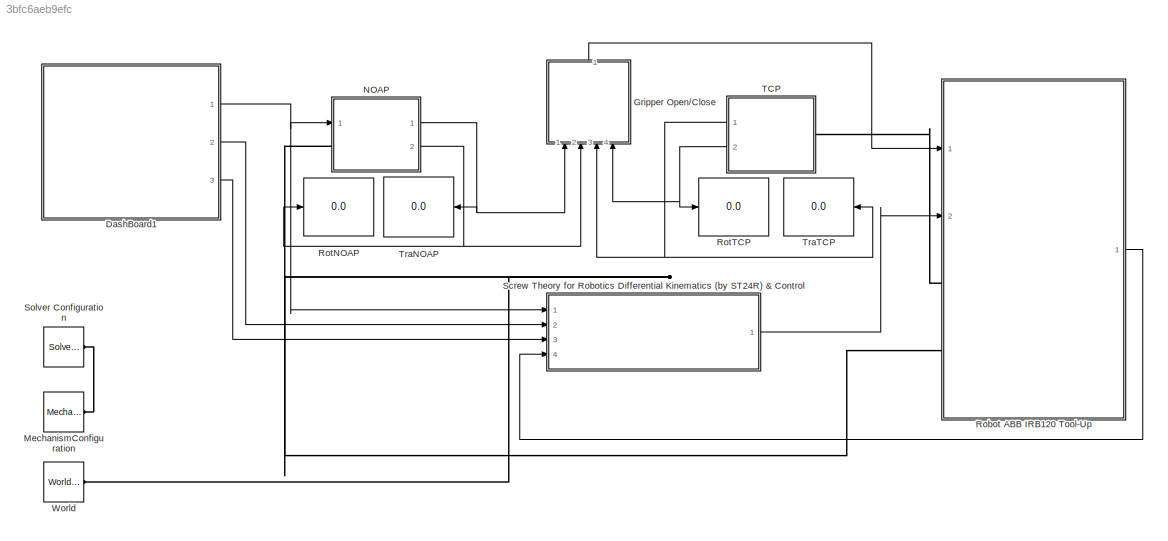
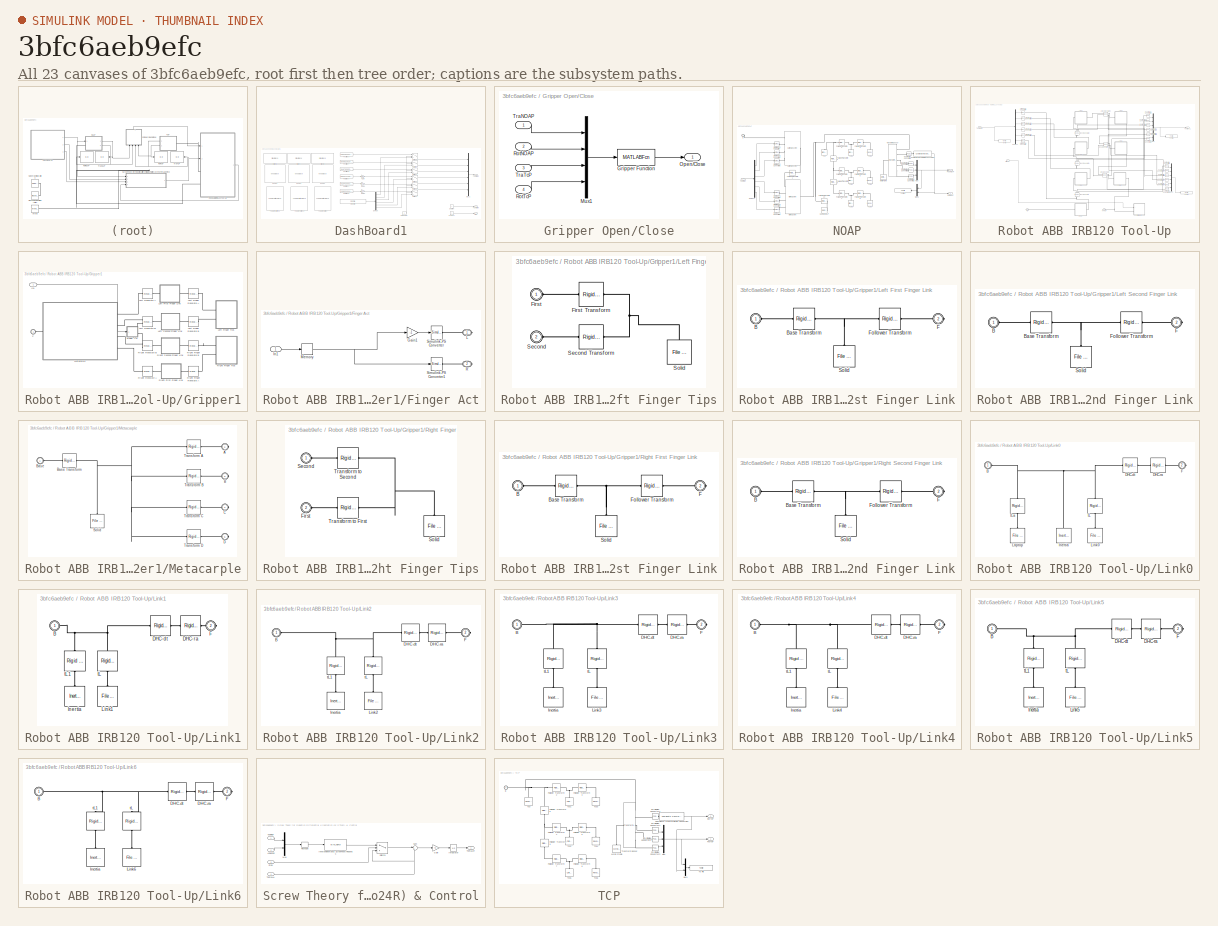
[diagram: thumbnail index - all 23 canvases of the model, root first then tree order]
MODEL slx_3bfc6aeb9efc
KIND model
CONFIG AbsTol = auto
CONFIG EnableMultiTasking = on
CONFIG FixedStep = 0.0005
CONFIG MaxStep = auto
CONFIG MinStep = auto
CONFIG RelTol = 1e-3
CONFIG SampleTimeConstraint = Unconstrained
CONFIG SolverName = FixedStepAuto
CONFIG StartTime = 0.0
CONFIG StopTime = 10
BLOCK [SubSystem] DashBoard1
  Ports = [0, 3]
  RequestExecContextInheritance = off
BLOCK [Outport] DashBoard1/#Solution
  NameLocation = top
  Port = 2
  VectorParamsAs1DForOutWhenUnconnected = off
BLOCK [Constant] DashBoard1/CONTROL
  Value = -1
BLOCK [Demux] DashBoard1/Demux
  Outputs = 6
  Ports = [1, 6]
BLOCK [FromFile] DashBoard1/From File
  ExtrapolationAfterLastDataPoint = Hold last value
  FileName = T852a_ST24R_DK_ABBIRB120_Trig
BLOCK [Gain] DashBoard1/Gain
  Gain = pi/180
BLOCK [Gain] DashBoard1/Gain1
  Gain = pi/180
BLOCK [Gain] DashBoard1/Gain2
  Gain = pi/180
BLOCK [KnobBlock] DashBoard1/Knob1
  ScaleMax = 360
  ScaleMin = -360
  TickInterval = 90
BLOCK [KnobBlock] DashBoard1/Knob2
  ScaleMax = 360
  ScaleMin = -360
  TickInterval = 90
BLOCK [KnobBlock] DashBoard1/Knob3
  ScaleMax = 360
  ScaleMin = -360
  TickInterval = 90
BLOCK [Mux] DashBoard1/Mux1
  DisplayOption = bar
  Inputs = 6
  Ports = [6, 1]
BLOCK [Constant] DashBoard1/Position X
  Value = 0.3823529411764706
BLOCK [Constant] DashBoard1/Position Y
  Value = 0.5088235294117647
BLOCK [Constant] DashBoard1/Position Z
  Value = -0.1879595588235294
BLOCK [Constant] DashBoard1/Rotation X
  Value = 5.860073780616631
BLOCK [Constant] DashBoard1/Rotation Y
  Value = 83.26420931237868
BLOCK [Constant] DashBoard1/Rotation Z
  Value = 136.8324914494164
BLOCK [Constant] DashBoard1/SAFETY
BLOCK [SliderBlock] DashBoard1/Slider
  ScaleMax = 0.75
  ScaleMin = 0.25
  TickInterval = 0.25
BLOCK [SliderBlock] DashBoard1/Slider1
  ScaleMax = 0.75
  ScaleMin = 0.25
  TickInterval = 0.25
BLOCK [SliderBlock] DashBoard1/Slider2
  ScaleMax = 0.5
  ScaleMin = -0.5
  TickInterval = 0.25
BLOCK [Constant] DashBoard1/Solution
BLOCK [Outport] DashBoard1/Stop
  Port = 3
  VectorParamsAs1DForOutWhenUnconnected = off
BLOCK [Switch] DashBoard1/Switch
  Criteria = u2 > Threshold
  InputSameDT = off
  SaturateOnIntegerOverflow = off
  ZeroCross = off
BLOCK [Switch] DashBoard1/Switch1
  Criteria = u2 > Threshold
  InputSameDT = off
  SaturateOnIntegerOverflow = off
  ZeroCross = off
BLOCK [Switch] DashBoard1/Switch2
  Criteria = u2 > Threshold
  InputSameDT = off
  SaturateOnIntegerOverflow = off
  ZeroCross = off
BLOCK [Switch] DashBoard1/Switch3
  Criteria = u2 > Threshold
  InputSameDT = off
  SaturateOnIntegerOverflow = off
  ZeroCross = off
BLOCK [Switch] DashBoard1/Switch4
  Criteria = u2 > Threshold
  InputSameDT = off
  SaturateOnIntegerOverflow = off
  ZeroCross = off
BLOCK [Switch] DashBoard1/Switch6
  Criteria = u2 > Threshold
  InputSameDT = off
  SaturateOnIntegerOverflow = off
  ZeroCross = off
BLOCK [ToggleSwitchBlock] DashBoard1/Toggle Switch
  LabelPosition = Bottom
  NameLocation = top
BLOCK [ToggleSwitchBlock] DashBoard1/Toggle Switch1
  LabelPosition = Bottom
  NameLocation = top
BLOCK [ToggleSwitchBlock] DashBoard1/Toggle Switch2
  LabelPosition = Bottom
  NameLocation = top
BLOCK [Outport] DashBoard1/ToolREF
  VectorParamsAs1DForOutWhenUnconnected = off
BLOCK [SubSystem] Gripper Open//Close
  NameLocation = left
  Ports = [4, 1]
  RequestExecContextInheritance = off
  ShowPortLabels = none
BLOCK [MATLABFcn] Gripper Open//Close/Gripper Function
  MATLABFcn = F200_Gripper
  OutputDimensions = 1
  Ports = [1, 1]
BLOCK [Mux] Gripper Open//Close/Mux1
  DisplayOption = bar
  Ports = [4, 1]
BLOCK [Outport] Gripper Open//Close/Open//Close
  VectorParamsAs1DForOutWhenUnconnected = off
BLOCK [Inport] Gripper Open//Close/RotNOAP
  Port = 2
BLOCK [Inport] Gripper Open//Close/RotTcP
  Port = 4
BLOCK [Inport] Gripper Open//Close/TraNOAP
BLOCK [Inport] Gripper Open//Close/TraTcP
  Port = 3
BLOCK [Reference] MechanismConfiguration  REF=sm_lib/Utilities/Mechanism
Configuration
  Ports = [0, 0, 0, 0, 0, 0, 1]
  SourceBlock = sm_lib/Utilities/Mechanism\nConfiguration
  SourceProductBaseCode = MS
  SourceType = Mechanism\nConfiguration
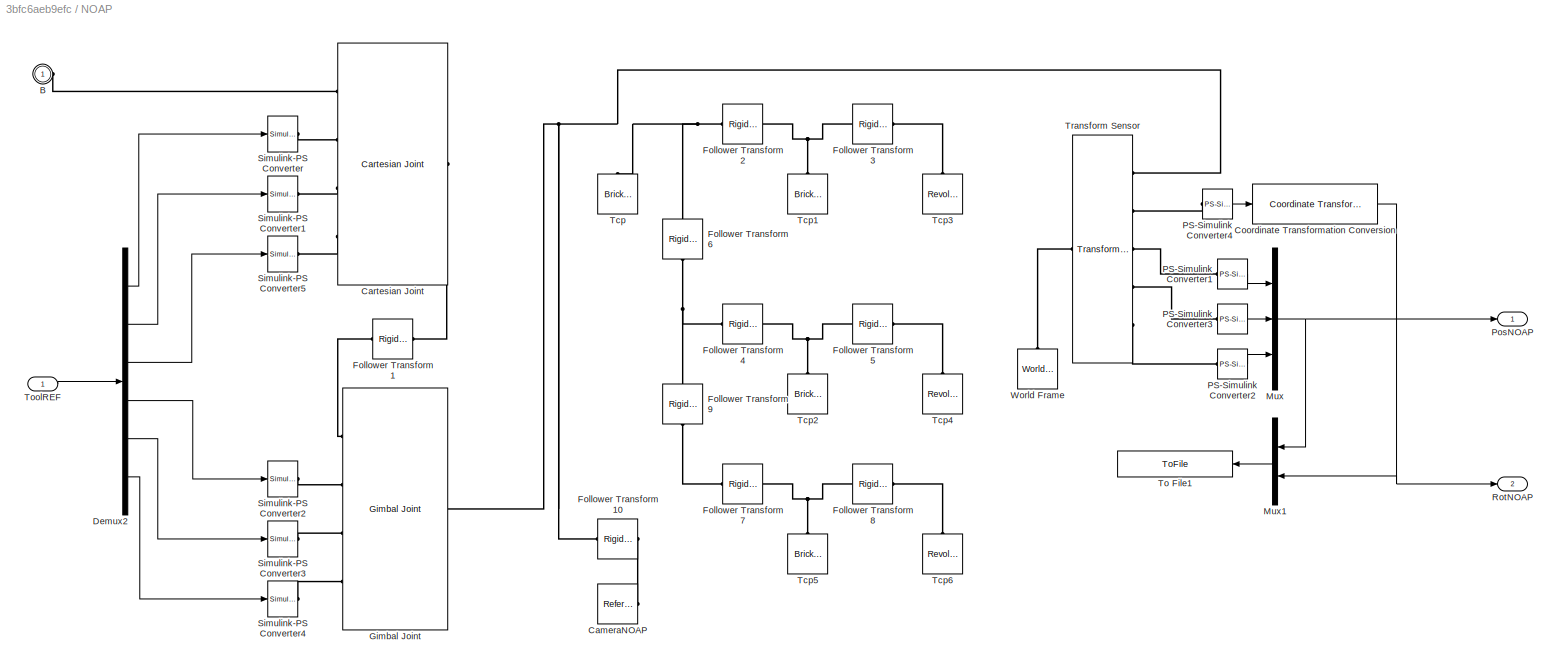
BLOCK [SubSystem] NOAP
  NameLocation = top
  Ports = [1, 2, 0, 0, 0, 1]
  RequestExecContextInheritance = off
BLOCK [PMIOPort] NOAP/B
  NameLocation = top
  Side = Left
BLOCK [Reference] NOAP/CameraNOAP   REF=sm_lib/Frames and
Transforms/Reference
Frame
  Ports = [0, 0, 0, 0, 0, 0, 1]
  SourceBlock = sm_lib/Frames and\nTransforms/Reference\nFrame
  SourceProductBaseCode = MS
  SourceType = Reference\nFrame
BLOCK [Reference] NOAP/Cartesian Joint  REF=sm_lib/Joints/Cartesian
Joint
  Ports = [0, 0, 0, 0, 0, 4, 1]
  SourceBlock = sm_lib/Joints/Cartesian\nJoint
  SourceProductBaseCode = MS
  SourceType = Cartesian\nJoint
BLOCK [Reference] NOAP/Coordinate Transformation Conversion  REF=robotcorelib/Coordinate Transformation Conversion
  Ports = [1, 1]
  SourceBlock = robotcorelib/Coordinate Transformation Conversion
  SourceProductBaseCode = NV,RO,RR,UV
  SourceType = robotics.slcore.internal.block.CoordinateTransformationConversion
BLOCK [Demux] NOAP/Demux2
  NameLocation = right
  Outputs = 6
  Ports = [1, 6]
BLOCK [Reference] NOAP/Follower Transform1  REF=sm_lib/Frames and
Transforms/Rigid
Transform
  NameLocation = top
  Ports = [0, 0, 0, 0, 0, 1, 1]
  SourceBlock = sm_lib/Frames and\nTransforms/Rigid\nTransform
  SourceProductBaseCode = MS
  SourceType = Rigid\nTransform
BLOCK [Reference] NOAP/Follower Transform10  REF=sm_lib/Frames and
Transforms/Rigid
Transform
  NameLocation = top
  Ports = [0, 0, 0, 0, 0, 1, 1]
  SourceBlock = sm_lib/Frames and\nTransforms/Rigid\nTransform
  SourceProductBaseCode = MS
  SourceType = Rigid\nTransform
BLOCK [Reference] NOAP/Follower Transform2  REF=sm_lib/Frames and
Transforms/Rigid
Transform
  NameLocation = top
  Ports = [0, 0, 0, 0, 0, 1, 1]
  SourceBlock = sm_lib/Frames and\nTransforms/Rigid\nTransform
  SourceProductBaseCode = MS
  SourceType = Rigid\nTransform
BLOCK [Reference] NOAP/Follower Transform3  REF=sm_lib/Frames and
Transforms/Rigid
Transform
  NameLocation = top
  Ports = [0, 0, 0, 0, 0, 1, 1]
  SourceBlock = sm_lib/Frames and\nTransforms/Rigid\nTransform
  SourceProductBaseCode = MS
  SourceType = Rigid\nTransform
BLOCK [Reference] NOAP/Follower Transform4  REF=sm_lib/Frames and
Transforms/Rigid
Transform
  NameLocation = top
  Ports = [0, 0, 0, 0, 0, 1, 1]
  SourceBlock = sm_lib/Frames and\nTransforms/Rigid\nTransform
  SourceProductBaseCode = MS
  SourceType = Rigid\nTransform
BLOCK [Reference] NOAP/Follower Transform5  REF=sm_lib/Frames and
Transforms/Rigid
Transform
  NameLocation = top
  Ports = [0, 0, 0, 0, 0, 1, 1]
  SourceBlock = sm_lib/Frames and\nTransforms/Rigid\nTransform
  SourceProductBaseCode = MS
  SourceType = Rigid\nTransform
BLOCK [Reference] NOAP/Follower Transform6  REF=sm_lib/Frames and
Transforms/Rigid
Transform
  NameLocation = right
  Ports = [0, 0, 0, 0, 0, 1, 1]
  SourceBlock = sm_lib/Frames and\nTransforms/Rigid\nTransform
  SourceProductBaseCode = MS
  SourceType = Rigid\nTransform
BLOCK [Reference] NOAP/Follower Transform7  REF=sm_lib/Frames and
Transforms/Rigid
Transform
  NameLocation = top
  Ports = [0, 0, 0, 0, 0, 1, 1]
  SourceBlock = sm_lib/Frames and\nTransforms/Rigid\nTransform
  SourceProductBaseCode = MS
  SourceType = Rigid\nTransform
BLOCK [Reference] NOAP/Follower Transform8  REF=sm_lib/Frames and
Transforms/Rigid
Transform
  NameLocation = top
  Ports = [0, 0, 0, 0, 0, 1, 1]
  SourceBlock = sm_lib/Frames and\nTransforms/Rigid\nTransform
  SourceProductBaseCode = MS
  SourceType = Rigid\nTransform
BLOCK [Reference] NOAP/Follower Transform9  REF=sm_lib/Frames and
Transforms/Rigid
Transform
  NameLocation = right
  Ports = [0, 0, 0, 0, 0, 1, 1]
  SourceBlock = sm_lib/Frames and\nTransforms/Rigid\nTransform
  SourceProductBaseCode = MS
  SourceType = Rigid\nTransform
BLOCK [Reference] NOAP/Gimbal Joint  REF=sm_lib/Joints/Gimbal Joint
  Ports = [0, 0, 0, 0, 0, 4, 1]
  SourceBlock = sm_lib/Joints/Gimbal Joint
  SourceProductBaseCode = MS
  SourceType = Gimbal Joint
BLOCK [Mux] NOAP/Mux
  DisplayOption = bar
  Inputs = 3
  Ports = [3, 1]
BLOCK [Mux] NOAP/Mux1
  DisplayOption = bar
  Inputs = 2
  Ports = [2, 1]
BLOCK [Reference] NOAP/PS-Simulink Converter1  REF=nesl_utility/PS-Simulink
Converter
  Ports = [0, 1, 0, 0, 0, 1]
  SourceBlock = nesl_utility/PS-Simulink\nConverter
  SourceProductBaseCode = SS
  SourceType = PS-Simulink\nConverter
BLOCK [Reference] NOAP/PS-Simulink Converter2  REF=nesl_utility/PS-Simulink
Converter
  Ports = [0, 1, 0, 0, 0, 1]
  SourceBlock = nesl_utility/PS-Simulink\nConverter
  SourceProductBaseCode = SS
  SourceType = PS-Simulink\nConverter
BLOCK [Reference] NOAP/PS-Simulink Converter3  REF=nesl_utility/PS-Simulink
Converter
  Ports = [0, 1, 0, 0, 0, 1]
  SourceBlock = nesl_utility/PS-Simulink\nConverter
  SourceProductBaseCode = SS
  SourceType = PS-Simulink\nConverter
BLOCK [Reference] NOAP/PS-Simulink Converter4  REF=nesl_utility/PS-Simulink
Converter
  Ports = [0, 1, 0, 0, 0, 1]
  SourceBlock = nesl_utility/PS-Simulink\nConverter
  SourceProductBaseCode = SS
  SourceType = PS-Simulink\nConverter
BLOCK [Outport] NOAP/PosNOAP
  VectorParamsAs1DForOutWhenUnconnected = off
BLOCK [Outport] NOAP/RotNOAP
  Port = 2
  VectorParamsAs1DForOutWhenUnconnected = off
BLOCK [Reference] NOAP/Simulink-PS Converter  REF=nesl_utility/Simulink-PS
Converter
  NameLocation = top
  Ports = [1, 0, 0, 0, 0, 0, 1]
  SourceBlock = nesl_utility/Simulink-PS\nConverter
  SourceProductBaseCode = SS
  SourceType = Simulink-PS\nConverter
BLOCK [Reference] NOAP/Simulink-PS Converter1  REF=nesl_utility/Simulink-PS
Converter
  NameLocation = top
  Ports = [1, 0, 0, 0, 0, 0, 1]
  SourceBlock = nesl_utility/Simulink-PS\nConverter
  SourceProductBaseCode = SS
  SourceType = Simulink-PS\nConverter
BLOCK [Reference] NOAP/Simulink-PS Converter2  REF=nesl_utility/Simulink-PS
Converter
  NameLocation = top
  Ports = [1, 0, 0, 0, 0, 0, 1]
  SourceBlock = nesl_utility/Simulink-PS\nConverter
  SourceProductBaseCode = SS
  SourceType = Simulink-PS\nConverter
BLOCK [Reference] NOAP/Simulink-PS Converter3  REF=nesl_utility/Simulink-PS
Converter
  NameLocation = top
  Ports = [1, 0, 0, 0, 0, 0, 1]
  SourceBlock = nesl_utility/Simulink-PS\nConverter
  SourceProductBaseCode = SS
  SourceType = Simulink-PS\nConverter
BLOCK [Reference] NOAP/Simulink-PS Converter4  REF=nesl_utility/Simulink-PS
Converter
  NameLocation = top
  Ports = [1, 0, 0, 0, 0, 0, 1]
  SourceBlock = nesl_utility/Simulink-PS\nConverter
  SourceProductBaseCode = SS
  SourceType = Simulink-PS\nConverter
BLOCK [Reference] NOAP/Simulink-PS Converter5  REF=nesl_utility/Simulink-PS
Converter
  NameLocation = top
  Ports = [1, 0, 0, 0, 0, 0, 1]
  SourceBlock = nesl_utility/Simulink-PS\nConverter
  SourceProductBaseCode = SS
  SourceType = Simulink-PS\nConverter
BLOCK [Reference] NOAP/Tcp  REF=sm_lib/Body Elements/Brick Solid
  NameLocation = right
  Ports = [0, 0, 0, 0, 0, 0, 1]
  SourceBlock = sm_lib/Body Elements/Brick Solid
  SourceProductBaseCode = MS
  SourceType = Brick Solid
BLOCK [Reference] NOAP/Tcp1  REF=sm_lib/Body Elements/Brick Solid
  NameLocation = right
  Ports = [0, 0, 0, 0, 0, 0, 1]
  SourceBlock = sm_lib/Body Elements/Brick Solid
  SourceProductBaseCode = MS
  SourceType = Brick Solid
BLOCK [Reference] NOAP/Tcp2  REF=sm_lib/Body Elements/Brick Solid
  NameLocation = right
  Ports = [0, 0, 0, 0, 0, 0, 1]
  SourceBlock = sm_lib/Body Elements/Brick Solid
  SourceProductBaseCode = MS
  SourceType = Brick Solid
BLOCK [Reference] NOAP/Tcp3  REF=sm_lib/Body Elements/Revolved Solid
  NameLocation = right
  Ports = [0, 0, 0, 0, 0, 0, 1]
  SourceBlock = sm_lib/Body Elements/Revolved Solid
  SourceProductBaseCode = MS
  SourceType = Revolved Solid
BLOCK [Reference] NOAP/Tcp4  REF=sm_lib/Body Elements/Revolved Solid
  NameLocation = right
  Ports = [0, 0, 0, 0, 0, 0, 1]
  SourceBlock = sm_lib/Body Elements/Revolved Solid
  SourceProductBaseCode = MS
  SourceType = Revolved Solid
BLOCK [Reference] NOAP/Tcp5  REF=sm_lib/Body Elements/Brick Solid
  NameLocation = right
  Ports = [0, 0, 0, 0, 0, 0, 1]
  SourceBlock = sm_lib/Body Elements/Brick Solid
  SourceProductBaseCode = MS
  SourceType = Brick Solid
BLOCK [Reference] NOAP/Tcp6  REF=sm_lib/Body Elements/Revolved Solid
  NameLocation = right
  Ports = [0, 0, 0, 0, 0, 0, 1]
  SourceBlock = sm_lib/Body Elements/Revolved Solid
  SourceProductBaseCode = MS
  SourceType = Revolved Solid
BLOCK [ToFile] NOAP/To File1
  Filename = ToolREF.mat
  Ports = [1]
BLOCK [Inport] NOAP/ToolREF
BLOCK [Reference] NOAP/Transform Sensor  REF=sm_lib/Frames and
Transforms/Transform
Sensor
  Ports = [0, 0, 0, 0, 0, 1, 5]
  SourceBlock = sm_lib/Frames and\nTransforms/Transform\nSensor
  SourceProductBaseCode = MS
  SourceType = Transform\nSensor
BLOCK [Reference] NOAP/World Frame  REF=sm_lib/Frames and
Transforms/World Frame
  NameLocation = right
  Ports = [0, 0, 0, 0, 0, 0, 1]
  SourceBlock = sm_lib/Frames and\nTransforms/World Frame
  SourceProductBaseCode = MS
  SourceType = World Frame
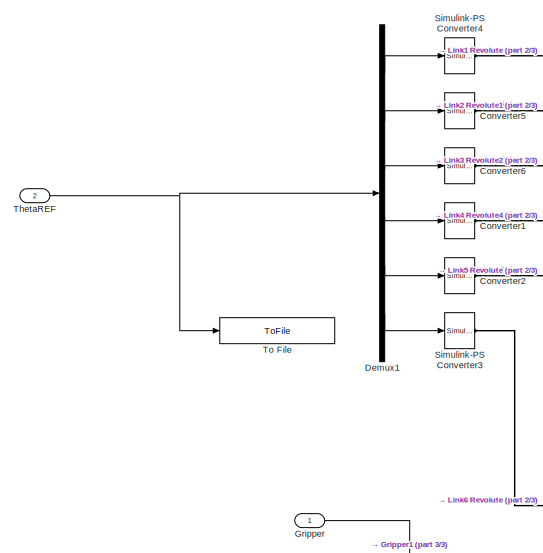
[diagram: Robot ABB IRB120 Tool-Up - part 1/3, top left region]
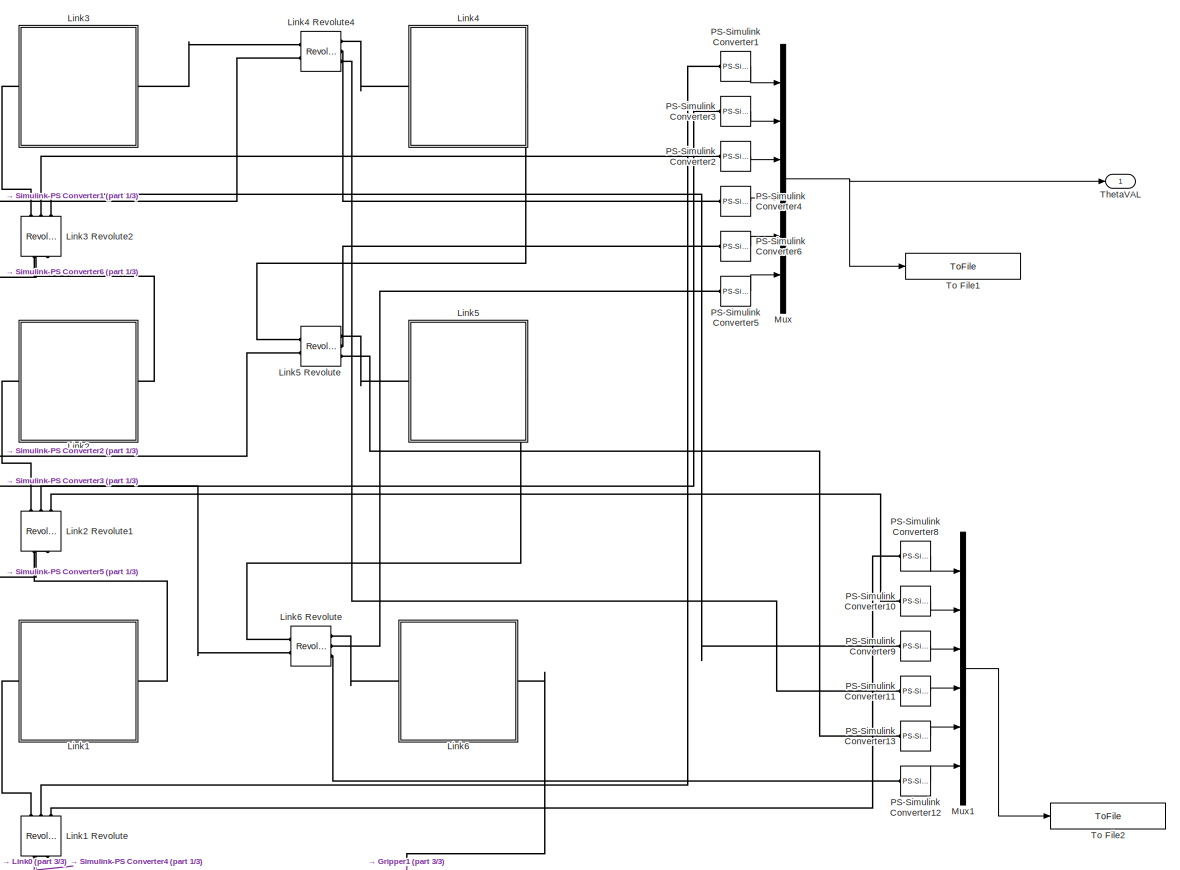
[diagram: Robot ABB IRB120 Tool-Up - part 2/3, right side, full height]
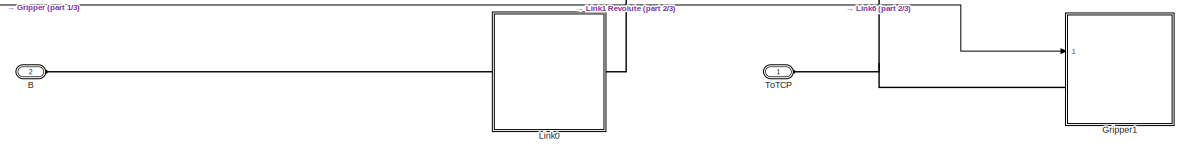
[diagram: Robot ABB IRB120 Tool-Up - part 3/3, bottom center region]
BLOCK [SubSystem] Robot ABB IRB120 Tool-Up
  NameLocation = top
  Ports = [2, 1, 0, 0, 0, 2]
  RequestExecContextInheritance = off
BLOCK [PMIOPort] Robot ABB IRB120 Tool-Up/B
  Port = 2
  Side = Left
BLOCK [Demux] Robot ABB IRB120 Tool-Up/Demux1
  Outputs = 6
  Ports = [1, 6]
BLOCK [Inport] Robot ABB IRB120 Tool-Up/Gripper
BLOCK [SubSystem] Robot ABB IRB120 Tool-Up/Gripper1
  NameLocation = top
  Ports = [1, 0, 0, 0, 0, 1]
  RequestExecContextInheritance = off
BLOCK [PMIOPort] Robot ABB IRB120 Tool-Up/Gripper1/F
  Side = Left
BLOCK [SubSystem] Robot ABB IRB120 Tool-Up/Gripper1/Finger Act
  NameLocation = top
  Ports = [1, 0, 0, 0, 0, 0, 2]
  RequestExecContextInheritance = off
BLOCK [Gain] Robot ABB IRB120 Tool-Up/Gripper1/Finger Act/Gain1
  Gain = -1
BLOCK [Inport] Robot ABB IRB120 Tool-Up/Gripper1/Finger Act/In1
BLOCK [PMIOPort] Robot ABB IRB120 Tool-Up/Gripper1/Finger Act/L
  Side = Right
BLOCK [Memory] Robot ABB IRB120 Tool-Up/Gripper1/Finger Act/Memory
  InitialCondition = 100
BLOCK [PMIOPort] Robot ABB IRB120 Tool-Up/Gripper1/Finger Act/R
  Port = 2
  Side = Right
BLOCK [Reference] Robot ABB IRB120 Tool-Up/Gripper1/Finger Act/Simulink-PS Converter  REF=nesl_utility/Simulink-PS
Converter
  Ports = [1, 0, 0, 0, 0, 0, 1]
  SourceBlock = nesl_utility/Simulink-PS\nConverter
  SourceProductBaseCode = SS
  SourceType = Simulink-PS\nConverter
BLOCK [Reference] Robot ABB IRB120 Tool-Up/Gripper1/Finger Act/Simulink-PS Converter1  REF=nesl_utility/Simulink-PS
Converter
  Ports = [1, 0, 0, 0, 0, 0, 1]
  SourceBlock = nesl_utility/Simulink-PS\nConverter
  SourceProductBaseCode = SS
  SourceType = Simulink-PS\nConverter
BLOCK [Inport] Robot ABB IRB120 Tool-Up/Gripper1/In1
BLOCK [Reference] Robot ABB IRB120 Tool-Up/Gripper1/Left Finger Revolute  A  REF=sm_lib/Joints/Revolute Joint
  NameLocation = top
  Ports = [0, 0, 0, 0, 0, 1, 1]
  SourceBlock = sm_lib/Joints/Revolute Joint
  SourceProductBaseCode = MS
  SourceType = Revolute Joint
BLOCK [Reference] Robot ABB IRB120 Tool-Up/Gripper1/Left Finger Revolute B  REF=sm_lib/Joints/Revolute Joint
  NameLocation = top
  Ports = [0, 0, 0, 0, 0, 1, 1]
  SourceBlock = sm_lib/Joints/Revolute Joint
  SourceProductBaseCode = MS
  SourceType = Revolute Joint
BLOCK [SubSystem] Robot ABB IRB120 Tool-Up/Gripper1/Left Finger Tips
  NameLocation = top
  Ports = [0, 0, 0, 0, 0, 2]
  RequestExecContextInheritance = off
BLOCK [PMIOPort] Robot ABB IRB120 Tool-Up/Gripper1/Left Finger Tips/First
  NameLocation = top
  Side = Left
BLOCK [Reference] Robot ABB IRB120 Tool-Up/Gripper1/Left Finger Tips/First Transform  REF=sm_lib/Frames and
Transforms/Rigid
Transform
  NameLocation = top
  Ports = [0, 0, 0, 0, 0, 1, 1]
  SourceBlock = sm_lib/Frames and\nTransforms/Rigid\nTransform
  SourceProductBaseCode = MS
  SourceType = Rigid\nTransform
BLOCK [PMIOPort] Robot ABB IRB120 Tool-Up/Gripper1/Left Finger Tips/Second
  NameLocation = top
  Port = 2
  Side = Left
BLOCK [Reference] Robot ABB IRB120 Tool-Up/Gripper1/Left Finger Tips/Second Transform  REF=sm_lib/Frames and
Transforms/Rigid
Transform
  Ports = [0, 0, 0, 0, 0, 1, 1]
  SourceBlock = sm_lib/Frames and\nTransforms/Rigid\nTransform
  SourceProductBaseCode = MS
  SourceType = Rigid\nTransform
BLOCK [Reference] Robot ABB IRB120 Tool-Up/Gripper1/Left Finger Tips/Solid  REF=sm_lib/Body Elements/File Solid
  NameLocation = right
  Ports = [0, 0, 0, 0, 0, 0, 1]
  SourceBlock = sm_lib/Body Elements/File Solid
  SourceProductBaseCode = MS
  SourceType = File Solid
BLOCK [SubSystem] Robot ABB IRB120 Tool-Up/Gripper1/Left First Finger Link
  NameLocation = top
  Ports = [0, 0, 0, 0, 0, 1, 1]
  RequestExecContextInheritance = off
BLOCK [PMIOPort] Robot ABB IRB120 Tool-Up/Gripper1/Left First Finger Link/B
  NameLocation = top
  Side = Left
BLOCK [Reference] Robot ABB IRB120 Tool-Up/Gripper1/Left First Finger Link/Base Transform  REF=sm_lib/Frames and
Transforms/Rigid
Transform
  NameLocation = top
  Ports = [0, 0, 0, 0, 0, 1, 1]
  SourceBlock = sm_lib/Frames and\nTransforms/Rigid\nTransform
  SourceProductBaseCode = MS
  SourceType = Rigid\nTransform
BLOCK [PMIOPort] Robot ABB IRB120 Tool-Up/Gripper1/Left First Finger Link/F
  NameLocation = top
  Port = 2
  Side = Right
BLOCK [Reference] Robot ABB IRB120 Tool-Up/Gripper1/Left First Finger Link/Follower Transform  REF=sm_lib/Frames and
Transforms/Rigid
Transform
  NameLocation = top
  Ports = [0, 0, 0, 0, 0, 1, 1]
  SourceBlock = sm_lib/Frames and\nTransforms/Rigid\nTransform
  SourceProductBaseCode = MS
  SourceType = Rigid\nTransform
BLOCK [Reference] Robot ABB IRB120 Tool-Up/Gripper1/Left First Finger Link/Solid  REF=sm_lib/Body Elements/File Solid
  NameLocation = right
  Ports = [0, 0, 0, 0, 0, 0, 1]
  SourceBlock = sm_lib/Body Elements/File Solid
  SourceProductBaseCode = MS
  SourceType = File Solid
BLOCK [Reference] Robot ABB IRB120 Tool-Up/Gripper1/Left Revolute A  REF=sm_lib/Joints/Revolute Joint
  NameLocation = top
  Ports = [0, 0, 0, 0, 0, 1, 1]
  SourceBlock = sm_lib/Joints/Revolute Joint
  SourceProductBaseCode = MS
  SourceType = Revolute Joint
BLOCK [Reference] Robot ABB IRB120 Tool-Up/Gripper1/Left Revolute B  REF=sm_lib/Joints/Revolute Joint
  NameLocation = top
  Ports = [0, 0, 0, 0, 0, 2, 1]
  SourceBlock = sm_lib/Joints/Revolute Joint
  SourceProductBaseCode = MS
  SourceType = Revolute Joint
BLOCK [SubSystem] Robot ABB IRB120 Tool-Up/Gripper1/Left Second Finger Link
  NameLocation = top
  Ports = [0, 0, 0, 0, 0, 1, 1]
  RequestExecContextInheritance = off
BLOCK [PMIOPort] Robot ABB IRB120 Tool-Up/Gripper1/Left Second Finger Link/B
  NameLocation = top
  Side = Left
BLOCK [Reference] Robot ABB IRB120 Tool-Up/Gripper1/Left Second Finger Link/Base Transform  REF=sm_lib/Frames and
Transforms/Rigid
Transform
  NameLocation = top
  Ports = [0, 0, 0, 0, 0, 1, 1]
  SourceBlock = sm_lib/Frames and\nTransforms/Rigid\nTransform
  SourceProductBaseCode = MS
  SourceType = Rigid\nTransform
BLOCK [PMIOPort] Robot ABB IRB120 Tool-Up/Gripper1/Left Second Finger Link/F
  NameLocation = top
  Port = 2
  Side = Right
BLOCK [Reference] Robot ABB IRB120 Tool-Up/Gripper1/Left Second Finger Link/Follower Transform  REF=sm_lib/Frames and
Transforms/Rigid
Transform
  NameLocation = top
  Ports = [0, 0, 0, 0, 0, 1, 1]
  SourceBlock = sm_lib/Frames and\nTransforms/Rigid\nTransform
  SourceProductBaseCode = MS
  SourceType = Rigid\nTransform
BLOCK [Reference] Robot ABB IRB120 Tool-Up/Gripper1/Left Second Finger Link/Solid  REF=sm_lib/Body Elements/File Solid
  NameLocation = right
  Ports = [0, 0, 0, 0, 0, 0, 1]
  SourceBlock = sm_lib/Body Elements/File Solid
  SourceProductBaseCode = MS
  SourceType = File Solid
BLOCK [SubSystem] Robot ABB IRB120 Tool-Up/Gripper1/Metacarple
  Ports = [0, 0, 0, 0, 0, 1, 4]
  RequestExecContextInheritance = off
BLOCK [PMIOPort] Robot ABB IRB120 Tool-Up/Gripper1/Metacarple/A
  NameLocation = top
  Port = 2
  Side = Right
BLOCK [PMIOPort] Robot ABB IRB120 Tool-Up/Gripper1/Metacarple/B
  NameLocation = top
  Port = 3
  Side = Right
BLOCK [PMIOPort] Robot ABB IRB120 Tool-Up/Gripper1/Metacarple/Base
  NameLocation = top
  Side = Left
BLOCK [Reference] Robot ABB IRB120 Tool-Up/Gripper1/Metacarple/Base Transform  REF=sm_lib/Frames and
Transforms/Rigid
Transform
  NameLocation = top
  Ports = [0, 0, 0, 0, 0, 1, 1]
  SourceBlock = sm_lib/Frames and\nTransforms/Rigid\nTransform
  SourceProductBaseCode = MS
  SourceType = Rigid\nTransform
BLOCK [PMIOPort] Robot ABB IRB120 Tool-Up/Gripper1/Metacarple/C
  NameLocation = top
  Port = 4
  Side = Right
BLOCK [PMIOPort] Robot ABB IRB120 Tool-Up/Gripper1/Metacarple/D
  NameLocation = top
  Port = 5
  Side = Right
BLOCK [Reference] Robot ABB IRB120 Tool-Up/Gripper1/Metacarple/Solid  REF=sm_lib/Body Elements/File Solid
  NameLocation = right
  Ports = [0, 0, 0, 0, 0, 0, 1]
  SourceBlock = sm_lib/Body Elements/File Solid
  SourceProductBaseCode = MS
  SourceType = File Solid
BLOCK [Reference] Robot ABB IRB120 Tool-Up/Gripper1/Metacarple/Transform A  REF=sm_lib/Frames and
Transforms/Rigid
Transform
  NameLocation = top
  Ports = [0, 0, 0, 0, 0, 1, 1]
  SourceBlock = sm_lib/Frames and\nTransforms/Rigid\nTransform
  SourceProductBaseCode = MS
  SourceType = Rigid\nTransform
BLOCK [Reference] Robot ABB IRB120 Tool-Up/Gripper1/Metacarple/Transform B  REF=sm_lib/Frames and
Transforms/Rigid
Transform
  NameLocation = top
  Ports = [0, 0, 0, 0, 0, 1, 1]
  SourceBlock = sm_lib/Frames and\nTransforms/Rigid\nTransform
  SourceProductBaseCode = MS
  SourceType = Rigid\nTransform
BLOCK [Reference] Robot ABB IRB120 Tool-Up/Gripper1/Metacarple/Transform C  REF=sm_lib/Frames and
Transforms/Rigid
Transform
  NameLocation = top
  Ports = [0, 0, 0, 0, 0, 1, 1]
  SourceBlock = sm_lib/Frames and\nTransforms/Rigid\nTransform
  SourceProductBaseCode = MS
  SourceType = Rigid\nTransform
BLOCK [Reference] Robot ABB IRB120 Tool-Up/Gripper1/Metacarple/Transform D  REF=sm_lib/Frames and
Transforms/Rigid
Transform
  NameLocation = top
  Ports = [0, 0, 0, 0, 0, 1, 1]
  SourceBlock = sm_lib/Frames and\nTransforms/Rigid\nTransform
  SourceProductBaseCode = MS
  SourceType = Rigid\nTransform
BLOCK [Reference] Robot ABB IRB120 Tool-Up/Gripper1/Right Finger Revolute A  REF=sm_lib/Joints/Revolute Joint
  Ports = [0, 0, 0, 0, 0, 1, 1]
  SourceBlock = sm_lib/Joints/Revolute Joint
  SourceProductBaseCode = MS
  SourceType = Revolute Joint
BLOCK [Reference] Robot ABB IRB120 Tool-Up/Gripper1/Right Finger Revolute B  REF=sm_lib/Joints/Revolute Joint
  Ports = [0, 0, 0, 0, 0, 1, 1]
  SourceBlock = sm_lib/Joints/Revolute Joint
  SourceProductBaseCode = MS
  SourceType = Revolute Joint
BLOCK [SubSystem] Robot ABB IRB120 Tool-Up/Gripper1/Right Finger Tips
  Ports = [0, 0, 0, 0, 0, 2]
  RequestExecContextInheritance = off
BLOCK [PMIOPort] Robot ABB IRB120 Tool-Up/Gripper1/Right Finger Tips/First
  NameLocation = top
  Port = 2
  Side = Left
BLOCK [PMIOPort] Robot ABB IRB120 Tool-Up/Gripper1/Right Finger Tips/Second
  NameLocation = top
  Side = Left
BLOCK [Reference] Robot ABB IRB120 Tool-Up/Gripper1/Right Finger Tips/Solid  REF=sm_lib/Body Elements/File Solid
  NameLocation = right
  Ports = [0, 0, 0, 0, 0, 0, 1]
  SourceBlock = sm_lib/Body Elements/File Solid
  SourceProductBaseCode = MS
  SourceType = File Solid
BLOCK [Reference] Robot ABB IRB120 Tool-Up/Gripper1/Right Finger Tips/Transform to First  REF=sm_lib/Frames and
Transforms/Rigid
Transform
  NameLocation = top
  Ports = [0, 0, 0, 0, 0, 1, 1]
  SourceBlock = sm_lib/Frames and\nTransforms/Rigid\nTransform
  SourceProductBaseCode = MS
  SourceType = Rigid\nTransform
BLOCK [Reference] Robot ABB IRB120 Tool-Up/Gripper1/Right Finger Tips/Transform to Second  REF=sm_lib/Frames and
Transforms/Rigid
Transform
  NameLocation = top
  Ports = [0, 0, 0, 0, 0, 1, 1]
  SourceBlock = sm_lib/Frames and\nTransforms/Rigid\nTransform
  SourceProductBaseCode = MS
  SourceType = Rigid\nTransform
BLOCK [SubSystem] Robot ABB IRB120 Tool-Up/Gripper1/Right First Finger Link
  Ports = [0, 0, 0, 0, 0, 1, 1]
  RequestExecContextInheritance = off
BLOCK [PMIOPort] Robot ABB IRB120 Tool-Up/Gripper1/Right First Finger Link/B
  NameLocation = top
  Side = Left
BLOCK [Reference] Robot ABB IRB120 Tool-Up/Gripper1/Right First Finger Link/Base Transform  REF=sm_lib/Frames and
Transforms/Rigid
Transform
  NameLocation = top
  Ports = [0, 0, 0, 0, 0, 1, 1]
  SourceBlock = sm_lib/Frames and\nTransforms/Rigid\nTransform
  SourceProductBaseCode = MS
  SourceType = Rigid\nTransform
BLOCK [PMIOPort] Robot ABB IRB120 Tool-Up/Gripper1/Right First Finger Link/F
  NameLocation = top
  Port = 2
  Side = Right
BLOCK [Reference] Robot ABB IRB120 Tool-Up/Gripper1/Right First Finger Link/Follower Transform  REF=sm_lib/Frames and
Transforms/Rigid
Transform
  NameLocation = top
  Ports = [0, 0, 0, 0, 0, 1, 1]
  SourceBlock = sm_lib/Frames and\nTransforms/Rigid\nTransform
  SourceProductBaseCode = MS
  SourceType = Rigid\nTransform
BLOCK [Reference] Robot ABB IRB120 Tool-Up/Gripper1/Right First Finger Link/Solid  REF=sm_lib/Body Elements/File Solid
  NameLocation = right
  Ports = [0, 0, 0, 0, 0, 0, 1]
  SourceBlock = sm_lib/Body Elements/File Solid
  SourceProductBaseCode = MS
  SourceType = File Solid
BLOCK [Reference] Robot ABB IRB120 Tool-Up/Gripper1/Right Revolute A  REF=sm_lib/Joints/Revolute Joint
  Ports = [0, 0, 0, 0, 0, 1, 1]
  SourceBlock = sm_lib/Joints/Revolute Joint
  SourceProductBaseCode = MS
  SourceType = Revolute Joint
BLOCK [Reference] Robot ABB IRB120 Tool-Up/Gripper1/Right Revolute B  REF=sm_lib/Joints/Revolute Joint
  Ports = [0, 0, 0, 0, 0, 2, 1]
  SourceBlock = sm_lib/Joints/Revolute Joint
  SourceProductBaseCode = MS
  SourceType = Revolute Joint
BLOCK [SubSystem] Robot ABB IRB120 Tool-Up/Gripper1/Right Second Finger Link
  Ports = [0, 0, 0, 0, 0, 1, 1]
  RequestExecContextInheritance = off
BLOCK [PMIOPort] Robot ABB IRB120 Tool-Up/Gripper1/Right Second Finger Link/B
  NameLocation = top
  Side = Left
BLOCK [Reference] Robot ABB IRB120 Tool-Up/Gripper1/Right Second Finger Link/Base Transform  REF=sm_lib/Frames and
Transforms/Rigid
Transform
  NameLocation = top
  Ports = [0, 0, 0, 0, 0, 1, 1]
  SourceBlock = sm_lib/Frames and\nTransforms/Rigid\nTransform
  SourceProductBaseCode = MS
  SourceType = Rigid\nTransform
BLOCK [PMIOPort] Robot ABB IRB120 Tool-Up/Gripper1/Right Second Finger Link/F
  NameLocation = top
  Port = 2
  Side = Right
BLOCK [Reference] Robot ABB IRB120 Tool-Up/Gripper1/Right Second Finger Link/Follower Transform  REF=sm_lib/Frames and
Transforms/Rigid
Transform
  NameLocation = top
  Ports = [0, 0, 0, 0, 0, 1, 1]
  SourceBlock = sm_lib/Frames and\nTransforms/Rigid\nTransform
  SourceProductBaseCode = MS
  SourceType = Rigid\nTransform
BLOCK [Reference] Robot ABB IRB120 Tool-Up/Gripper1/Right Second Finger Link/Solid  REF=sm_lib/Body Elements/File Solid
  NameLocation = right
  Ports = [0, 0, 0, 0, 0, 0, 1]
  SourceBlock = sm_lib/Body Elements/File Solid
  SourceProductBaseCode = MS
  SourceType = File Solid
BLOCK [SubSystem] Robot ABB IRB120 Tool-Up/Link0
  Ports = [0, 0, 0, 0, 0, 1, 1]
  RequestExecContextInheritance = off
BLOCK [PMIOPort] Robot ABB IRB120 Tool-Up/Link0/B
  NameLocation = top
  Side = Left
BLOCK [Reference] Robot ABB IRB120 Tool-Up/Link0/DHC-dt  REF=sm_lib/Frames and
Transforms/Rigid
Transform
  Ports = [0, 0, 0, 0, 0, 1, 1]
  SourceBlock = sm_lib/Frames and\nTransforms/Rigid\nTransform
  SourceProductBaseCode = MS
  SourceType = Rigid\nTransform
BLOCK [Reference] Robot ABB IRB120 Tool-Up/Link0/DHC-ra  REF=sm_lib/Frames and
Transforms/Rigid
Transform
  Ports = [0, 0, 0, 0, 0, 1, 1]
  SourceBlock = sm_lib/Frames and\nTransforms/Rigid\nTransform
  SourceProductBaseCode = MS
  SourceType = Rigid\nTransform
BLOCK [PMIOPort] Robot ABB IRB120 Tool-Up/Link0/F
  NameLocation = top
  Port = 2
  Side = Right
BLOCK [Reference] Robot ABB IRB120 Tool-Up/Link0/Inertia  REF=sm_lib/Body Elements/Inertia
  NameLocation = right
  Ports = [0, 0, 0, 0, 0, 0, 1]
  SourceBlock = sm_lib/Body Elements/Inertia
  SourceProductBaseCode = MS
  SourceType = Inertia
BLOCK [Reference] Robot ABB IRB120 Tool-Up/Link0/Laptop   REF=sm_lib/Body Elements/File Solid
  NameLocation = right
  Ports = [0, 0, 0, 0, 0, 1]
  SourceBlock = sm_lib/Body Elements/File Solid
  SourceProductBaseCode = MS
  SourceType = File Solid
BLOCK [Reference] Robot ABB IRB120 Tool-Up/Link0/Link0  REF=sm_lib/Body Elements/File Solid
  NameLocation = right
  Ports = [0, 0, 0, 0, 0, 0, 1]
  SourceBlock = sm_lib/Body Elements/File Solid
  SourceProductBaseCode = MS
  SourceType = File Solid
BLOCK [Reference] Robot ABB IRB120 Tool-Up/Link0/tL  REF=sm_lib/Frames and
Transforms/Rigid
Transform
  NameLocation = left
  Ports = [0, 0, 0, 0, 0, 1, 1]
  SourceBlock = sm_lib/Frames and\nTransforms/Rigid\nTransform
  SourceProductBaseCode = MS
  SourceType = Rigid\nTransform
BLOCK [Reference] Robot ABB IRB120 Tool-Up/Link0/tLa  REF=sm_lib/Frames and
Transforms/Rigid
Transform
  NameLocation = left
  Ports = [0, 0, 0, 0, 0, 1, 1]
  SourceBlock = sm_lib/Frames and\nTransforms/Rigid\nTransform
  SourceProductBaseCode = MS
  SourceType = Rigid\nTransform
BLOCK [SubSystem] Robot ABB IRB120 Tool-Up/Link1
  NameLocation = top
  Ports = [0, 0, 0, 0, 0, 1, 1]
  RequestExecContextInheritance = off
BLOCK [Reference] Robot ABB IRB120 Tool-Up/Link1 Revolute  REF=sm_lib/Joints/Revolute Joint
  NameLocation = left
  Ports = [0, 0, 0, 0, 0, 2, 3]
  SourceBlock = sm_lib/Joints/Revolute Joint
  SourceProductBaseCode = MS
  SourceType = Revolute Joint
BLOCK [PMIOPort] Robot ABB IRB120 Tool-Up/Link1/B
  NameLocation = top
  Side = Left
BLOCK [Reference] Robot ABB IRB120 Tool-Up/Link1/DHC-dt  REF=sm_lib/Frames and
Transforms/Rigid
Transform
  Ports = [0, 0, 0, 0, 0, 1, 1]
  SourceBlock = sm_lib/Frames and\nTransforms/Rigid\nTransform
  SourceProductBaseCode = MS
  SourceType = Rigid\nTransform
BLOCK [Reference] Robot ABB IRB120 Tool-Up/Link1/DHC-ra  REF=sm_lib/Frames and
Transforms/Rigid
Transform
  Ports = [0, 0, 0, 0, 0, 1, 1]
  SourceBlock = sm_lib/Frames and\nTransforms/Rigid\nTransform
  SourceProductBaseCode = MS
  SourceType = Rigid\nTransform
BLOCK [PMIOPort] Robot ABB IRB120 Tool-Up/Link1/F
  NameLocation = top
  Port = 2
  Side = Right
BLOCK [Reference] Robot ABB IRB120 Tool-Up/Link1/Inertia  REF=sm_lib/Body Elements/Inertia
  NameLocation = right
  Ports = [0, 0, 0, 0, 0, 0, 1]
  SourceBlock = sm_lib/Body Elements/Inertia
  SourceProductBaseCode = MS
  SourceType = Inertia
BLOCK [Reference] Robot ABB IRB120 Tool-Up/Link1/Link1  REF=sm_lib/Body Elements/File Solid
  NameLocation = right
  Ports = [0, 0, 0, 0, 0, 1]
  SourceBlock = sm_lib/Body Elements/File Solid
  SourceProductBaseCode = MS
  SourceType = File Solid
BLOCK [Reference] Robot ABB IRB120 Tool-Up/Link1/tL  REF=sm_lib/Frames and
Transforms/Rigid
Transform
  NameLocation = left
  Ports = [0, 0, 0, 0, 0, 1, 1]
  SourceBlock = sm_lib/Frames and\nTransforms/Rigid\nTransform
  SourceProductBaseCode = MS
  SourceType = Rigid\nTransform
BLOCK [Reference] Robot ABB IRB120 Tool-Up/Link1/tL1  REF=sm_lib/Frames and
Transforms/Rigid
Transform
  NameLocation = left
  Ports = [0, 0, 0, 0, 0, 1, 1]
  SourceBlock = sm_lib/Frames and\nTransforms/Rigid\nTransform
  SourceProductBaseCode = MS
  SourceType = Rigid\nTransform
BLOCK [SubSystem] Robot ABB IRB120 Tool-Up/Link2
  NameLocation = top
  Ports = [0, 0, 0, 0, 0, 1, 1]
  RequestExecContextInheritance = off
BLOCK [Reference] Robot ABB IRB120 Tool-Up/Link2 Revolute1  REF=sm_lib/Joints/Revolute Joint
  NameLocation = left
  Ports = [0, 0, 0, 0, 0, 2, 3]
  SourceBlock = sm_lib/Joints/Revolute Joint
  SourceProductBaseCode = MS
  SourceType = Revolute Joint
BLOCK [PMIOPort] Robot ABB IRB120 Tool-Up/Link2/B
  NameLocation = top
  Side = Left
BLOCK [Reference] Robot ABB IRB120 Tool-Up/Link2/DHC-dt  REF=sm_lib/Frames and
Transforms/Rigid
Transform
  Ports = [0, 0, 0, 0, 0, 1, 1]
  SourceBlock = sm_lib/Frames and\nTransforms/Rigid\nTransform
  SourceProductBaseCode = MS
  SourceType = Rigid\nTransform
BLOCK [Reference] Robot ABB IRB120 Tool-Up/Link2/DHC-ra  REF=sm_lib/Frames and
Transforms/Rigid
Transform
  Ports = [0, 0, 0, 0, 0, 1, 1]
  SourceBlock = sm_lib/Frames and\nTransforms/Rigid\nTransform
  SourceProductBaseCode = MS
  SourceType = Rigid\nTransform
BLOCK [PMIOPort] Robot ABB IRB120 Tool-Up/Link2/F
  NameLocation = top
  Port = 2
  Side = Right
BLOCK [Reference] Robot ABB IRB120 Tool-Up/Link2/Inertia  REF=sm_lib/Body Elements/Inertia
  NameLocation = right
  Ports = [0, 0, 0, 0, 0, 0, 1]
  SourceBlock = sm_lib/Body Elements/Inertia
  SourceProductBaseCode = MS
  SourceType = Inertia
BLOCK [Reference] Robot ABB IRB120 Tool-Up/Link2/Link2  REF=sm_lib/Body Elements/File Solid
  NameLocation = right
  Ports = [0, 0, 0, 0, 0, 1]
  SourceBlock = sm_lib/Body Elements/File Solid
  SourceProductBaseCode = MS
  SourceType = File Solid
BLOCK [Reference] Robot ABB IRB120 Tool-Up/Link2/tL  REF=sm_lib/Frames and
Transforms/Rigid
Transform
  NameLocation = left
  Ports = [0, 0, 0, 0, 0, 1, 1]
  SourceBlock = sm_lib/Frames and\nTransforms/Rigid\nTransform
  SourceProductBaseCode = MS
  SourceType = Rigid\nTransform
BLOCK [Reference] Robot ABB IRB120 Tool-Up/Link2/tL1  REF=sm_lib/Frames and
Transforms/Rigid
Transform
  NameLocation = left
  Ports = [0, 0, 0, 0, 0, 1, 1]
  SourceBlock = sm_lib/Frames and\nTransforms/Rigid\nTransform
  SourceProductBaseCode = MS
  SourceType = Rigid\nTransform
BLOCK [SubSystem] Robot ABB IRB120 Tool-Up/Link3
  NameLocation = top
  Ports = [0, 0, 0, 0, 0, 1, 1]
  RequestExecContextInheritance = off
BLOCK [Reference] Robot ABB IRB120 Tool-Up/Link3 Revolute2  REF=sm_lib/Joints/Revolute Joint
  NameLocation = left
  Ports = [0, 0, 0, 0, 0, 2, 3]
  SourceBlock = sm_lib/Joints/Revolute Joint
  SourceProductBaseCode = MS
  SourceType = Revolute Joint
BLOCK [PMIOPort] Robot ABB IRB120 Tool-Up/Link3/B
  NameLocation = top
  Side = Left
BLOCK [Reference] Robot ABB IRB120 Tool-Up/Link3/DHC-dt  REF=sm_lib/Frames and
Transforms/Rigid
Transform
  Ports = [0, 0, 0, 0, 0, 1, 1]
  SourceBlock = sm_lib/Frames and\nTransforms/Rigid\nTransform
  SourceProductBaseCode = MS
  SourceType = Rigid\nTransform
BLOCK [Reference] Robot ABB IRB120 Tool-Up/Link3/DHC-ra  REF=sm_lib/Frames and
Transforms/Rigid
Transform
  Ports = [0, 0, 0, 0, 0, 1, 1]
  SourceBlock = sm_lib/Frames and\nTransforms/Rigid\nTransform
  SourceProductBaseCode = MS
  SourceType = Rigid\nTransform
BLOCK [PMIOPort] Robot ABB IRB120 Tool-Up/Link3/F
  NameLocation = top
  Port = 2
  Side = Right
BLOCK [Reference] Robot ABB IRB120 Tool-Up/Link3/Inertia  REF=sm_lib/Body Elements/Inertia
  NameLocation = right
  Ports = [0, 0, 0, 0, 0, 0, 1]
  SourceBlock = sm_lib/Body Elements/Inertia
  SourceProductBaseCode = MS
  SourceType = Inertia
BLOCK [Reference] Robot ABB IRB120 Tool-Up/Link3/Link3  REF=sm_lib/Body Elements/File Solid
  NameLocation = right
  Ports = [0, 0, 0, 0, 0, 1]
  SourceBlock = sm_lib/Body Elements/File Solid
  SourceProductBaseCode = MS
  SourceType = File Solid
BLOCK [Reference] Robot ABB IRB120 Tool-Up/Link3/tL  REF=sm_lib/Frames and
Transforms/Rigid
Transform
  NameLocation = left
  Ports = [0, 0, 0, 0, 0, 1, 1]
  SourceBlock = sm_lib/Frames and\nTransforms/Rigid\nTransform
  SourceProductBaseCode = MS
  SourceType = Rigid\nTransform
BLOCK [Reference] Robot ABB IRB120 Tool-Up/Link3/tL1  REF=sm_lib/Frames and
Transforms/Rigid
Transform
  NameLocation = left
  Ports = [0, 0, 0, 0, 0, 1, 1]
  SourceBlock = sm_lib/Frames and\nTransforms/Rigid\nTransform
  SourceProductBaseCode = MS
  SourceType = Rigid\nTransform
BLOCK [SubSystem] Robot ABB IRB120 Tool-Up/Link4
  NameLocation = top
  Ports = [0, 0, 0, 0, 0, 1, 1]
  RequestExecContextInheritance = off
BLOCK [Reference] Robot ABB IRB120 Tool-Up/Link4 Revolute4  REF=sm_lib/Joints/Revolute Joint
  NameLocation = top
  Ports = [0, 0, 0, 0, 0, 2, 3]
  SourceBlock = sm_lib/Joints/Revolute Joint
  SourceProductBaseCode = MS
  SourceType = Revolute Joint
BLOCK [PMIOPort] Robot ABB IRB120 Tool-Up/Link4/B
  NameLocation = top
  Side = Left
BLOCK [Reference] Robot ABB IRB120 Tool-Up/Link4/DHC-dt  REF=sm_lib/Frames and
Transforms/Rigid
Transform
  Ports = [0, 0, 0, 0, 0, 1, 1]
  SourceBlock = sm_lib/Frames and\nTransforms/Rigid\nTransform
  SourceProductBaseCode = MS
  SourceType = Rigid\nTransform
BLOCK [Reference] Robot ABB IRB120 Tool-Up/Link4/DHC-ra  REF=sm_lib/Frames and
Transforms/Rigid
Transform
  Ports = [0, 0, 0, 0, 0, 1, 1]
  SourceBlock = sm_lib/Frames and\nTransforms/Rigid\nTransform
  SourceProductBaseCode = MS
  SourceType = Rigid\nTransform
BLOCK [PMIOPort] Robot ABB IRB120 Tool-Up/Link4/F
  NameLocation = top
  Port = 2
  Side = Right
BLOCK [Reference] Robot ABB IRB120 Tool-Up/Link4/Inertia  REF=sm_lib/Body Elements/Inertia
  NameLocation = right
  Ports = [0, 0, 0, 0, 0, 0, 1]
  SourceBlock = sm_lib/Body Elements/Inertia
  SourceProductBaseCode = MS
  SourceType = Inertia
BLOCK [Reference] Robot ABB IRB120 Tool-Up/Link4/Link4  REF=sm_lib/Body Elements/File Solid
  NameLocation = right
  Ports = [0, 0, 0, 0, 0, 1]
  SourceBlock = sm_lib/Body Elements/File Solid
  SourceProductBaseCode = MS
  SourceType = File Solid
BLOCK [Reference] Robot ABB IRB120 Tool-Up/Link4/tL  REF=sm_lib/Frames and
Transforms/Rigid
Transform
  NameLocation = left
  Ports = [0, 0, 0, 0, 0, 1, 1]
  SourceBlock = sm_lib/Frames and\nTransforms/Rigid\nTransform
  SourceProductBaseCode = MS
  SourceType = Rigid\nTransform
BLOCK [Reference] Robot ABB IRB120 Tool-Up/Link4/tL1  REF=sm_lib/Frames and
Transforms/Rigid
Transform
  NameLocation = left
  Ports = [0, 0, 0, 0, 0, 1, 1]
  SourceBlock = sm_lib/Frames and\nTransforms/Rigid\nTransform
  SourceProductBaseCode = MS
  SourceType = Rigid\nTransform
BLOCK [SubSystem] Robot ABB IRB120 Tool-Up/Link5
  NameLocation = top
  Ports = [0, 0, 0, 0, 0, 1, 1]
  RequestExecContextInheritance = off
BLOCK [Reference] Robot ABB IRB120 Tool-Up/Link5 Revolute  REF=sm_lib/Joints/Revolute Joint
  NameLocation = top
  Ports = [0, 0, 0, 0, 0, 2, 3]
  SourceBlock = sm_lib/Joints/Revolute Joint
  SourceProductBaseCode = MS
  SourceType = Revolute Joint
BLOCK [PMIOPort] Robot ABB IRB120 Tool-Up/Link5/B
  NameLocation = top
  Side = Left
BLOCK [Reference] Robot ABB IRB120 Tool-Up/Link5/DHC-dt  REF=sm_lib/Frames and
Transforms/Rigid
Transform
  Ports = [0, 0, 0, 0, 0, 1, 1]
  SourceBlock = sm_lib/Frames and\nTransforms/Rigid\nTransform
  SourceProductBaseCode = MS
  SourceType = Rigid\nTransform
BLOCK [Reference] Robot ABB IRB120 Tool-Up/Link5/DHC-ra  REF=sm_lib/Frames and
Transforms/Rigid
Transform
  Ports = [0, 0, 0, 0, 0, 1, 1]
  SourceBlock = sm_lib/Frames and\nTransforms/Rigid\nTransform
  SourceProductBaseCode = MS
  SourceType = Rigid\nTransform
BLOCK [PMIOPort] Robot ABB IRB120 Tool-Up/Link5/F
  NameLocation = top
  Port = 2
  Side = Right
BLOCK [Reference] Robot ABB IRB120 Tool-Up/Link5/Inertia  REF=sm_lib/Body Elements/Inertia
  NameLocation = right
  Ports = [0, 0, 0, 0, 0, 0, 1]
  SourceBlock = sm_lib/Body Elements/Inertia
  SourceProductBaseCode = MS
  SourceType = Inertia
BLOCK [Reference] Robot ABB IRB120 Tool-Up/Link5/Link5  REF=sm_lib/Body Elements/File Solid
  NameLocation = right
  Ports = [0, 0, 0, 0, 0, 1]
  SourceBlock = sm_lib/Body Elements/File Solid
  SourceProductBaseCode = MS
  SourceType = File Solid
BLOCK [Reference] Robot ABB IRB120 Tool-Up/Link5/tL  REF=sm_lib/Frames and
Transforms/Rigid
Transform
  NameLocation = left
  Ports = [0, 0, 0, 0, 0, 1, 1]
  SourceBlock = sm_lib/Frames and\nTransforms/Rigid\nTransform
  SourceProductBaseCode = MS
  SourceType = Rigid\nTransform
BLOCK [Reference] Robot ABB IRB120 Tool-Up/Link5/tL1  REF=sm_lib/Frames and
Transforms/Rigid
Transform
  NameLocation = left
  Ports = [0, 0, 0, 0, 0, 1, 1]
  SourceBlock = sm_lib/Frames and\nTransforms/Rigid\nTransform
  SourceProductBaseCode = MS
  SourceType = Rigid\nTransform
BLOCK [SubSystem] Robot ABB IRB120 Tool-Up/Link6
  NameLocation = top
  Ports = [0, 0, 0, 0, 0, 1, 1]
  RequestExecContextInheritance = off
BLOCK [Reference] Robot ABB IRB120 Tool-Up/Link6 Revolute  REF=sm_lib/Joints/Revolute Joint
  NameLocation = top
  Ports = [0, 0, 0, 0, 0, 2, 3]
  SourceBlock = sm_lib/Joints/Revolute Joint
  SourceProductBaseCode = MS
  SourceType = Revolute Joint
BLOCK [PMIOPort] Robot ABB IRB120 Tool-Up/Link6/B
  NameLocation = top
  Side = Left
BLOCK [Reference] Robot ABB IRB120 Tool-Up/Link6/DHC-dt  REF=sm_lib/Frames and
Transforms/Rigid
Transform
  Ports = [0, 0, 0, 0, 0, 1, 1]
  SourceBlock = sm_lib/Frames and\nTransforms/Rigid\nTransform
  SourceProductBaseCode = MS
  SourceType = Rigid\nTransform
BLOCK [Reference] Robot ABB IRB120 Tool-Up/Link6/DHC-ra  REF=sm_lib/Frames and
Transforms/Rigid
Transform
  Ports = [0, 0, 0, 0, 0, 1, 1]
  SourceBlock = sm_lib/Frames and\nTransforms/Rigid\nTransform
  SourceProductBaseCode = MS
  SourceType = Rigid\nTransform
BLOCK [PMIOPort] Robot ABB IRB120 Tool-Up/Link6/F
  NameLocation = top
  Port = 2
  Side = Right
BLOCK [Reference] Robot ABB IRB120 Tool-Up/Link6/Inertia  REF=sm_lib/Body Elements/Inertia
  NameLocation = right
  Ports = [0, 0, 0, 0, 0, 0, 1]
  SourceBlock = sm_lib/Body Elements/Inertia
  SourceProductBaseCode = MS
  SourceType = Inertia
BLOCK [Reference] Robot ABB IRB120 Tool-Up/Link6/Link6  REF=sm_lib/Body Elements/File Solid
  NameLocation = right
  Ports = [0, 0, 0, 0, 0, 1]
  SourceBlock = sm_lib/Body Elements/File Solid
  SourceProductBaseCode = MS
  SourceType = File Solid
BLOCK [Reference] Robot ABB IRB120 Tool-Up/Link6/tL  REF=sm_lib/Frames and
Transforms/Rigid
Transform
  NameLocation = left
  Ports = [0, 0, 0, 0, 0, 1, 1]
  SourceBlock = sm_lib/Frames and\nTransforms/Rigid\nTransform
  SourceProductBaseCode = MS
  SourceType = Rigid\nTransform
BLOCK [Reference] Robot ABB IRB120 Tool-Up/Link6/tL1  REF=sm_lib/Frames and
Transforms/Rigid
Transform
  NameLocation = left
  Ports = [0, 0, 0, 0, 0, 1, 1]
  SourceBlock = sm_lib/Frames and\nTransforms/Rigid\nTransform
  SourceProductBaseCode = MS
  SourceType = Rigid\nTransform
BLOCK [Mux] Robot ABB IRB120 Tool-Up/Mux
  DisplayOption = bar
  Inputs = 6
  Ports = [6, 1]
BLOCK [Mux] Robot ABB IRB120 Tool-Up/Mux1
  DisplayOption = bar
  Inputs = 6
  Ports = [6, 1]
BLOCK [Reference] Robot ABB IRB120 Tool-Up/PS-Simulink Converter1  REF=nesl_utility/PS-Simulink
Converter
  Ports = [0, 1, 0, 0, 0, 1]
  SourceBlock = nesl_utility/PS-Simulink\nConverter
  SourceProductBaseCode = SS
  SourceType = PS-Simulink\nConverter
BLOCK [Reference] Robot ABB IRB120 Tool-Up/PS-Simulink Converter10  REF=nesl_utility/PS-Simulink
Converter
  Ports = [0, 1, 0, 0, 0, 1]
  SourceBlock = nesl_utility/PS-Simulink\nConverter
  SourceProductBaseCode = SS
  SourceType = PS-Simulink\nConverter
BLOCK [Reference] Robot ABB IRB120 Tool-Up/PS-Simulink Converter11  REF=nesl_utility/PS-Simulink
Converter
  Ports = [0, 1, 0, 0, 0, 1]
  SourceBlock = nesl_utility/PS-Simulink\nConverter
  SourceProductBaseCode = SS
  SourceType = PS-Simulink\nConverter
BLOCK [Reference] Robot ABB IRB120 Tool-Up/PS-Simulink Converter12  REF=nesl_utility/PS-Simulink
Converter
  Ports = [0, 1, 0, 0, 0, 1]
  SourceBlock = nesl_utility/PS-Simulink\nConverter
  SourceProductBaseCode = SS
  SourceType = PS-Simulink\nConverter
BLOCK [Reference] Robot ABB IRB120 Tool-Up/PS-Simulink Converter13  REF=nesl_utility/PS-Simulink
Converter
  Ports = [0, 1, 0, 0, 0, 1]
  SourceBlock = nesl_utility/PS-Simulink\nConverter
  SourceProductBaseCode = SS
  SourceType = PS-Simulink\nConverter
BLOCK [Reference] Robot ABB IRB120 Tool-Up/PS-Simulink Converter2  REF=nesl_utility/PS-Simulink
Converter
  Ports = [0, 1, 0, 0, 0, 1]
  SourceBlock = nesl_utility/PS-Simulink\nConverter
  SourceProductBaseCode = SS
  SourceType = PS-Simulink\nConverter
BLOCK [Reference] Robot ABB IRB120 Tool-Up/PS-Simulink Converter3  REF=nesl_utility/PS-Simulink
Converter
  Ports = [0, 1, 0, 0, 0, 1]
  SourceBlock = nesl_utility/PS-Simulink\nConverter
  SourceProductBaseCode = SS
  SourceType = PS-Simulink\nConverter
BLOCK [Reference] Robot ABB IRB120 Tool-Up/PS-Simulink Converter4  REF=nesl_utility/PS-Simulink
Converter
  Ports = [0, 1, 0, 0, 0, 1]
  SourceBlock = nesl_utility/PS-Simulink\nConverter
  SourceProductBaseCode = SS
  SourceType = PS-Simulink\nConverter
BLOCK [Reference] Robot ABB IRB120 Tool-Up/PS-Simulink Converter5  REF=nesl_utility/PS-Simulink
Converter
  Ports = [0, 1, 0, 0, 0, 1]
  SourceBlock = nesl_utility/PS-Simulink\nConverter
  SourceProductBaseCode = SS
  SourceType = PS-Simulink\nConverter
BLOCK [Reference] Robot ABB IRB120 Tool-Up/PS-Simulink Converter6  REF=nesl_utility/PS-Simulink
Converter
  Ports = [0, 1, 0, 0, 0, 1]
  SourceBlock = nesl_utility/PS-Simulink\nConverter
  SourceProductBaseCode = SS
  SourceType = PS-Simulink\nConverter
BLOCK [Reference] Robot ABB IRB120 Tool-Up/PS-Simulink Converter8  REF=nesl_utility/PS-Simulink
Converter
  Ports = [0, 1, 0, 0, 0, 1]
  SourceBlock = nesl_utility/PS-Simulink\nConverter
  SourceProductBaseCode = SS
  SourceType = PS-Simulink\nConverter
BLOCK [Reference] Robot ABB IRB120 Tool-Up/PS-Simulink Converter9  REF=nesl_utility/PS-Simulink
Converter
  Ports = [0, 1, 0, 0, 0, 1]
  SourceBlock = nesl_utility/PS-Simulink\nConverter
  SourceProductBaseCode = SS
  SourceType = PS-Simulink\nConverter
BLOCK [Reference] Robot ABB IRB120 Tool-Up/Simulink-PS Converter1  REF=nesl_utility/Simulink-PS
Converter
  NameLocation = top
  Ports = [1, 0, 0, 0, 0, 0, 1]
  SourceBlock = nesl_utility/Simulink-PS\nConverter
  SourceProductBaseCode = SS
  SourceType = Simulink-PS\nConverter
BLOCK [Reference] Robot ABB IRB120 Tool-Up/Simulink-PS Converter2  REF=nesl_utility/Simulink-PS
Converter
  NameLocation = top
  Ports = [1, 0, 0, 0, 0, 0, 1]
  SourceBlock = nesl_utility/Simulink-PS\nConverter
  SourceProductBaseCode = SS
  SourceType = Simulink-PS\nConverter
BLOCK [Reference] Robot ABB IRB120 Tool-Up/Simulink-PS Converter3  REF=nesl_utility/Simulink-PS
Converter
  NameLocation = top
  Ports = [1, 0, 0, 0, 0, 0, 1]
  SourceBlock = nesl_utility/Simulink-PS\nConverter
  SourceProductBaseCode = SS
  SourceType = Simulink-PS\nConverter
BLOCK [Reference] Robot ABB IRB120 Tool-Up/Simulink-PS Converter4  REF=nesl_utility/Simulink-PS
Converter
  NameLocation = top
  Ports = [1, 0, 0, 0, 0, 0, 1]
  SourceBlock = nesl_utility/Simulink-PS\nConverter
  SourceProductBaseCode = SS
  SourceType = Simulink-PS\nConverter
BLOCK [Reference] Robot ABB IRB120 Tool-Up/Simulink-PS Converter5  REF=nesl_utility/Simulink-PS
Converter
  NameLocation = top
  Ports = [1, 0, 0, 0, 0, 0, 1]
  SourceBlock = nesl_utility/Simulink-PS\nConverter
  SourceProductBaseCode = SS
  SourceType = Simulink-PS\nConverter
BLOCK [Reference] Robot ABB IRB120 Tool-Up/Simulink-PS Converter6  REF=nesl_utility/Simulink-PS
Converter
  NameLocation = top
  Ports = [1, 0, 0, 0, 0, 0, 1]
  SourceBlock = nesl_utility/Simulink-PS\nConverter
  SourceProductBaseCode = SS
  SourceType = Simulink-PS\nConverter
BLOCK [Inport] Robot ABB IRB120 Tool-Up/ThetaREF
  Port = 2
BLOCK [Outport] Robot ABB IRB120 Tool-Up/ThetaVAL
  VectorParamsAs1DForOutWhenUnconnected = off
BLOCK [ToFile] Robot ABB IRB120 Tool-Up/To File
  Filename = JThe6REF.mat
  Ports = [1]
BLOCK [ToFile] Robot ABB IRB120 Tool-Up/To File1
  Filename = JThe6VAL.mat
  Ports = [1]
BLOCK [ToFile] Robot ABB IRB120 Tool-Up/To File2
  Filename = JThe6pVAL.mat
  Ports = [1]
BLOCK [PMIOPort] Robot ABB IRB120 Tool-Up/ToTCP
  Side = Left
BLOCK [Display] RotNOAP
  Decimation = 1
  Ports = [1]
BLOCK [Display] RotTCP
  Decimation = 1
  Ports = [1]
BLOCK [SubSystem] Screw Theory for Robotics Differential Kinematics (by ST24R) & Control
  Ports = [4, 1]
  RequestExecContextInheritance = off
BLOCK [Inport] Screw Theory for Robotics Differential Kinematics (by ST24R) & Control/#Solution
  Port = 2
BLOCK [Gain] Screw Theory for Robotics Differential Kinematics (by ST24R) & Control/Gain
  Gain = 75
BLOCK [Integrator] Screw Theory for Robotics Differential Kinematics (by ST24R) & Control/Integrator
  Ports = [1, 1]
BLOCK [MATLABFcn] Screw Theory for Robotics Differential Kinematics (by ST24R) & Control/InverseKinematics ScrewTheoryRobotics
  MATLABFcn = F852a_ST24R_DK_ABBIRB120_ToolUp
  OutputDimensions = 6
  Ports = [1, 1]
BLOCK [Mux] Screw Theory for Robotics Differential Kinematics (by ST24R) & Control/Mux
  DisplayOption = bar
  Inputs = 2
  Ports = [2, 1]
BLOCK [Reshape] Screw Theory for Robotics Differential Kinematics (by ST24R) & Control/Reshape
  OutputDimensionality = Customize
  OutputDimensions = [1,7]
  Ports = [1, 1]
BLOCK [Inport] Screw Theory for Robotics Differential Kinematics (by ST24R) & Control/Stop
  Port = 3
BLOCK [Sum] Screw Theory for Robotics Differential Kinematics (by ST24R) & Control/Sum
  Inputs = |+-
  Ports = [2, 1]
BLOCK [Switch] Screw Theory for Robotics Differential Kinematics (by ST24R) & Control/Switch1
  Criteria = u2 > Threshold
  InputSameDT = off
  SaturateOnIntegerOverflow = off
BLOCK [Outport] Screw Theory for Robotics Differential Kinematics (by ST24R) & Control/ThetaACT
  VectorParamsAs1DForOutWhenUnconnected = off
BLOCK [Inport] Screw Theory for Robotics Differential Kinematics (by ST24R) & Control/ThetaVAL
  Port = 4
BLOCK [Inport] Screw Theory for Robotics Differential Kinematics (by ST24R) & Control/ToolREF
BLOCK [Reference] Solver Configuration  REF=nesl_utility/Solver
Configuration
  Ports = [0, 0, 0, 0, 0, 0, 1]
  SourceBlock = nesl_utility/Solver\nConfiguration
  SourceProductBaseCode = SS
  SourceType = Solver\nConfiguration
BLOCK [SubSystem] TCP
  NameLocation = top
  Ports = [0, 2, 0, 0, 0, 1]
  RequestExecContextInheritance = off
BLOCK [PMIOPort] TCP/B
  NameLocation = top
  Side = Left
BLOCK [Reference] TCP/Coordinate Transformation Conversion  REF=robotcorelib/Coordinate Transformation Conversion
  Ports = [1, 1]
  SourceBlock = robotcorelib/Coordinate Transformation Conversion
  SourceProductBaseCode = NV,RO,RR,UV
  SourceType = robotics.slcore.internal.block.CoordinateTransformationConversion
BLOCK [Reference] TCP/Follower Transform2  REF=sm_lib/Frames and
Transforms/Rigid
Transform
  NameLocation = top
  Ports = [0, 0, 0, 0, 0, 1, 1]
  SourceBlock = sm_lib/Frames and\nTransforms/Rigid\nTransform
  SourceProductBaseCode = MS
  SourceType = Rigid\nTransform
BLOCK [Reference] TCP/Follower Transform3  REF=sm_lib/Frames and
Transforms/Rigid
Transform
  NameLocation = top
  Ports = [0, 0, 0, 0, 0, 1, 1]
  SourceBlock = sm_lib/Frames and\nTransforms/Rigid\nTransform
  SourceProductBaseCode = MS
  SourceType = Rigid\nTransform
BLOCK [Reference] TCP/Follower Transform4  REF=sm_lib/Frames and
Transforms/Rigid
Transform
  NameLocation = top
  Ports = [0, 0, 0, 0, 0, 1, 1]
  SourceBlock = sm_lib/Frames and\nTransforms/Rigid\nTransform
  SourceProductBaseCode = MS
  SourceType = Rigid\nTransform
BLOCK [Reference] TCP/Follower Transform5  REF=sm_lib/Frames and
Transforms/Rigid
Transform
  NameLocation = top
  Ports = [0, 0, 0, 0, 0, 1, 1]
  SourceBlock = sm_lib/Frames and\nTransforms/Rigid\nTransform
  SourceProductBaseCode = MS
  SourceType = Rigid\nTransform
BLOCK [Reference] TCP/Follower Transform6  REF=sm_lib/Frames and
Transforms/Rigid
Transform
  NameLocation = right
  Ports = [0, 0, 0, 0, 0, 1, 1]
  SourceBlock = sm_lib/Frames and\nTransforms/Rigid\nTransform
  SourceProductBaseCode = MS
  SourceType = Rigid\nTransform
BLOCK [Reference] TCP/Follower Transform7  REF=sm_lib/Frames and
Transforms/Rigid
Transform
  NameLocation = top
  Ports = [0, 0, 0, 0, 0, 1, 1]
  SourceBlock = sm_lib/Frames and\nTransforms/Rigid\nTransform
  SourceProductBaseCode = MS
  SourceType = Rigid\nTransform
BLOCK [Reference] TCP/Follower Transform8  REF=sm_lib/Frames and
Transforms/Rigid
Transform
  NameLocation = top
  Ports = [0, 0, 0, 0, 0, 1, 1]
  SourceBlock = sm_lib/Frames and\nTransforms/Rigid\nTransform
  SourceProductBaseCode = MS
  SourceType = Rigid\nTransform
BLOCK [Reference] TCP/Follower Transform9  REF=sm_lib/Frames and
Transforms/Rigid
Transform
  NameLocation = right
  Ports = [0, 0, 0, 0, 0, 1, 1]
  SourceBlock = sm_lib/Frames and\nTransforms/Rigid\nTransform
  SourceProductBaseCode = MS
  SourceType = Rigid\nTransform
BLOCK [Mux] TCP/Mux
  DisplayOption = bar
  Inputs = 3
  Ports = [3, 1]
BLOCK [Mux] TCP/Mux1
  DisplayOption = bar
  Inputs = 2
  Ports = [2, 1]
BLOCK [Reference] TCP/PS-Simulink Converter1  REF=nesl_utility/PS-Simulink
Converter
  Ports = [0, 1, 0, 0, 0, 1]
  SourceBlock = nesl_utility/PS-Simulink\nConverter
  SourceProductBaseCode = SS
  SourceType = PS-Simulink\nConverter
BLOCK [Reference] TCP/PS-Simulink Converter2  REF=nesl_utility/PS-Simulink
Converter
  Ports = [0, 1, 0, 0, 0, 1]
  SourceBlock = nesl_utility/PS-Simulink\nConverter
  SourceProductBaseCode = SS
  SourceType = PS-Simulink\nConverter
BLOCK [Reference] TCP/PS-Simulink Converter3  REF=nesl_utility/PS-Simulink
Converter
  Ports = [0, 1, 0, 0, 0, 1]
  SourceBlock = nesl_utility/PS-Simulink\nConverter
  SourceProductBaseCode = SS
  SourceType = PS-Simulink\nConverter
BLOCK [Reference] TCP/PS-Simulink Converter4  REF=nesl_utility/PS-Simulink
Converter
  Ports = [0, 1, 0, 0, 0, 1]
  SourceBlock = nesl_utility/PS-Simulink\nConverter
  SourceProductBaseCode = SS
  SourceType = PS-Simulink\nConverter
BLOCK [Outport] TCP/PosTCP
  VectorParamsAs1DForOutWhenUnconnected = off
BLOCK [Outport] TCP/RotTCP
  Port = 2
  VectorParamsAs1DForOutWhenUnconnected = off
BLOCK [Reference] TCP/Tcp  REF=sm_lib/Body Elements/Spherical Solid
  NameLocation = right
  Ports = [0, 0, 0, 0, 0, 0, 1]
  SourceBlock = sm_lib/Body Elements/Spherical Solid
  SourceProductBaseCode = MS
  SourceType = Spherical Solid
BLOCK [Reference] TCP/Tcp1  REF=sm_lib/Body Elements/Cylindrical Solid
  NameLocation = right
  Ports = [0, 0, 0, 0, 0, 0, 1]
  SourceBlock = sm_lib/Body Elements/Cylindrical Solid
  SourceProductBaseCode = MS
  SourceType = Cylindrical Solid
BLOCK [Reference] TCP/Tcp2  REF=sm_lib/Body Elements/Cylindrical Solid
  NameLocation = right
  Ports = [0, 0, 0, 0, 0, 0, 1]
  SourceBlock = sm_lib/Body Elements/Cylindrical Solid
  SourceProductBaseCode = MS
  SourceType = Cylindrical Solid
BLOCK [Reference] TCP/Tcp3  REF=sm_lib/Body Elements/Revolved Solid
  NameLocation = right
  Ports = [0, 0, 0, 0, 0, 0, 1]
  SourceBlock = sm_lib/Body Elements/Revolved Solid
  SourceProductBaseCode = MS
  SourceType = Revolved Solid
BLOCK [Reference] TCP/Tcp4  REF=sm_lib/Body Elements/Revolved Solid
  NameLocation = right
  Ports = [0, 0, 0, 0, 0, 0, 1]
  SourceBlock = sm_lib/Body Elements/Revolved Solid
  SourceProductBaseCode = MS
  SourceType = Revolved Solid
BLOCK [Reference] TCP/Tcp5  REF=sm_lib/Body Elements/Cylindrical Solid
  NameLocation = right
  Ports = [0, 0, 0, 0, 0, 0, 1]
  SourceBlock = sm_lib/Body Elements/Cylindrical Solid
  SourceProductBaseCode = MS
  SourceType = Cylindrical Solid
BLOCK [Reference] TCP/Tcp6  REF=sm_lib/Body Elements/Revolved Solid
  NameLocation = right
  Ports = [0, 0, 0, 0, 0, 0, 1]
  SourceBlock = sm_lib/Body Elements/Revolved Solid
  SourceProductBaseCode = MS
  SourceType = Revolved Solid
BLOCK [ToFile] TCP/To File
  Filename = ToolVAL.mat
  Ports = [1]
BLOCK [Reference] TCP/Transform Sensor  REF=sm_lib/Frames and
Transforms/Transform
Sensor
  Ports = [0, 0, 0, 0, 0, 1, 5]
  SourceBlock = sm_lib/Frames and\nTransforms/Transform\nSensor
  SourceProductBaseCode = MS
  SourceType = Transform\nSensor
BLOCK [Reference] TCP/World Frame  REF=sm_lib/Frames and
Transforms/World Frame
  NameLocation = right
  Ports = [0, 0, 0, 0, 0, 0, 1]
  SourceBlock = sm_lib/Frames and\nTransforms/World Frame
  SourceProductBaseCode = MS
  SourceType = World Frame
BLOCK [Display] TraNOAP
  Decimation = 1
  Ports = [1]
BLOCK [Display] TraTCP
  Decimation = 1
  Ports = [1]
BLOCK [Reference] World  REF=sm_lib/Frames and
Transforms/World Frame
  Ports = [0, 0, 0, 0, 0, 0, 1]
  SourceBlock = sm_lib/Frames and\nTransforms/World Frame
  SourceProductBaseCode = MS
  SourceType = World Frame
NET DashBoard1/CONTROL:1 -> DashBoard1/Switch1:2, DashBoard1/Switch2:2, DashBoard1/Switch3:2, DashBoard1/Switch4:2, DashBoard1/Switch6:2, DashBoard1/Switch:2
LINE DashBoard1/Demux:1 -> DashBoard1/Switch6:3
LINE DashBoard1/Demux:2 -> DashBoard1/Switch:3
LINE DashBoard1/Demux:3 -> DashBoard1/Switch1:3
LINE DashBoard1/Demux:4 -> DashBoard1/Switch2:3
LINE DashBoard1/Demux:5 -> DashBoard1/Switch3:3
LINE DashBoard1/Demux:6 -> DashBoard1/Switch4:3
LINE DashBoard1/From File:1 -> DashBoard1/Demux:1
LINE DashBoard1/Gain1:1 -> DashBoard1/Switch3:1
LINE DashBoard1/Gain2:1 -> DashBoard1/Switch4:1
LINE DashBoard1/Gain:1 -> DashBoard1/Switch2:1
LINE DashBoard1/Mux1:1 -> DashBoard1/ToolREF:1
LINE DashBoard1/Position X:1 -> DashBoard1/Switch6:1
LINE DashBoard1/Position Y:1 -> DashBoard1/Switch:1
LINE DashBoard1/Position Z:1 -> DashBoard1/Switch1:1
LINE DashBoard1/Rotation X:1 -> DashBoard1/Gain:1
LINE DashBoard1/Rotation Y:1 -> DashBoard1/Gain1:1
LINE DashBoard1/Rotation Z:1 -> DashBoard1/Gain2:1
LINE DashBoard1/SAFETY:1 -> DashBoard1/Stop:1
LINE DashBoard1/Solution:1 -> DashBoard1/#Solution:1
LINE DashBoard1/Switch1:1 -> DashBoard1/Mux1:3
LINE DashBoard1/Switch2:1 -> DashBoard1/Mux1:4
LINE DashBoard1/Switch3:1 -> DashBoard1/Mux1:5
LINE DashBoard1/Switch4:1 -> DashBoard1/Mux1:6
LINE DashBoard1/Switch6:1 -> DashBoard1/Mux1:1
LINE DashBoard1/Switch:1 -> DashBoard1/Mux1:2
NET DashBoard1:1 -> NOAP:1, Screw Theory for Robotics Differential Kinematics (by ST24R) & Control:1
LINE DashBoard1:2 -> Screw Theory for Robotics Differential Kinematics (by ST24R) & Control:2
LINE DashBoard1:3 -> Screw Theory for Robotics Differential Kinematics (by ST24R) & Control:3
LINE Gripper Open//Close/Gripper Function:1 -> Gripper Open//Close/Open//Close:1
LINE Gripper Open//Close/Mux1:1 -> Gripper Open//Close/Gripper Function:1
LINE Gripper Open//Close/RotNOAP:1 -> Gripper Open//Close/Mux1:2
LINE Gripper Open//Close/RotTcP:1 -> Gripper Open//Close/Mux1:4
LINE Gripper Open//Close/TraNOAP:1 -> Gripper Open//Close/Mux1:1
LINE Gripper Open//Close/TraTcP:1 -> Gripper Open//Close/Mux1:3
LINE Gripper Open//Close:1 -> Robot ABB IRB120 Tool-Up:1
NET NOAP/Coordinate Transformation Conversion:1 -> NOAP/Mux1:2, NOAP/RotNOAP:1
LINE NOAP/Demux2:1 -> NOAP/Simulink-PS Converter:1
LINE NOAP/Demux2:2 -> NOAP/Simulink-PS Converter1:1
LINE NOAP/Demux2:3 -> NOAP/Simulink-PS Converter5:1
LINE NOAP/Demux2:4 -> NOAP/Simulink-PS Converter2:1
LINE NOAP/Demux2:5 -> NOAP/Simulink-PS Converter3:1
LINE NOAP/Demux2:6 -> NOAP/Simulink-PS Converter4:1
LINE NOAP/Mux1:1 -> NOAP/To File1:1
NET NOAP/Mux:1 -> NOAP/Mux1:1, NOAP/PosNOAP:1
LINE NOAP/PS-Simulink Converter1:1 -> NOAP/Mux:1
LINE NOAP/PS-Simulink Converter2:1 -> NOAP/Mux:3
LINE NOAP/PS-Simulink Converter3:1 -> NOAP/Mux:2
LINE NOAP/PS-Simulink Converter4:1 -> NOAP/Coordinate Transformation Conversion:1
LINE NOAP/ToolREF:1 -> NOAP/Demux2:1
NET NOAP:1 -> Gripper Open//Close:1, TraNOAP:1
NET NOAP:2 -> Gripper Open//Close:2, RotNOAP:1
LINE Robot ABB IRB120 Tool-Up/Demux1:1 -> Robot ABB IRB120 Tool-Up/Simulink-PS Converter4:1
LINE Robot ABB IRB120 Tool-Up/Demux1:2 -> Robot ABB IRB120 Tool-Up/Simulink-PS Converter5:1
LINE Robot ABB IRB120 Tool-Up/Demux1:3 -> Robot ABB IRB120 Tool-Up/Simulink-PS Converter6:1
LINE Robot ABB IRB120 Tool-Up/Demux1:4 -> Robot ABB IRB120 Tool-Up/Simulink-PS Converter1:1
LINE Robot ABB IRB120 Tool-Up/Demux1:5 -> Robot ABB IRB120 Tool-Up/Simulink-PS Converter2:1
LINE Robot ABB IRB120 Tool-Up/Demux1:6 -> Robot ABB IRB120 Tool-Up/Simulink-PS Converter3:1
LINE Robot ABB IRB120 Tool-Up/Gripper1/Finger Act/Gain1:1 -> Robot ABB IRB120 Tool-Up/Gripper1/Finger Act/Simulink-PS Converter:1
LINE Robot ABB IRB120 Tool-Up/Gripper1/Finger Act/In1:1 -> Robot ABB IRB120 Tool-Up/Gripper1/Finger Act/Memory:1
NET Robot ABB IRB120 Tool-Up/Gripper1/Finger Act/Memory:1 -> Robot ABB IRB120 Tool-Up/Gripper1/Finger Act/Gain1:1, Robot ABB IRB120 Tool-Up/Gripper1/Finger Act/Simulink-PS Converter1:1
LINE Robot ABB IRB120 Tool-Up/Gripper1/In1:1 -> Robot ABB IRB120 Tool-Up/Gripper1/Finger Act:1
LINE Robot ABB IRB120 Tool-Up/Gripper:1 -> Robot ABB IRB120 Tool-Up/Gripper1:1
LINE Robot ABB IRB120 Tool-Up/Mux1:1 -> Robot ABB IRB120 Tool-Up/To File2:1
NET Robot ABB IRB120 Tool-Up/Mux:1 -> Robot ABB IRB120 Tool-Up/ThetaVAL:1, Robot ABB IRB120 Tool-Up/To File1:1
LINE Robot ABB IRB120 Tool-Up/PS-Simulink Converter10:1 -> Robot ABB IRB120 Tool-Up/Mux1:2
LINE Robot ABB IRB120 Tool-Up/PS-Simulink Converter11:1 -> Robot ABB IRB120 Tool-Up/Mux1:4
LINE Robot ABB IRB120 Tool-Up/PS-Simulink Converter12:1 -> Robot ABB IRB120 Tool-Up/Mux1:6
LINE Robot ABB IRB120 Tool-Up/PS-Simulink Converter13:1 -> Robot ABB IRB120 Tool-Up/Mux1:5
LINE Robot ABB IRB120 Tool-Up/PS-Simulink Converter1:1 -> Robot ABB IRB120 Tool-Up/Mux:1
LINE Robot ABB IRB120 Tool-Up/PS-Simulink Converter2:1 -> Robot ABB IRB120 Tool-Up/Mux:3
LINE Robot ABB IRB120 Tool-Up/PS-Simulink Converter3:1 -> Robot ABB IRB120 Tool-Up/Mux:2
LINE Robot ABB IRB120 Tool-Up/PS-Simulink Converter4:1 -> Robot ABB IRB120 Tool-Up/Mux:4
LINE Robot ABB IRB120 Tool-Up/PS-Simulink Converter5:1 -> Robot ABB IRB120 Tool-Up/Mux:6
LINE Robot ABB IRB120 Tool-Up/PS-Simulink Converter6:1 -> Robot ABB IRB120 Tool-Up/Mux:5
LINE Robot ABB IRB120 Tool-Up/PS-Simulink Converter8:1 -> Robot ABB IRB120 Tool-Up/Mux1:1
LINE Robot ABB IRB120 Tool-Up/PS-Simulink Converter9:1 -> Robot ABB IRB120 Tool-Up/Mux1:3
NET Robot ABB IRB120 Tool-Up/ThetaREF:1 -> Robot ABB IRB120 Tool-Up/Demux1:1, Robot ABB IRB120 Tool-Up/To File:1
LINE Robot ABB IRB120 Tool-Up:1 -> Screw Theory for Robotics Differential Kinematics (by ST24R) & Control:4
LINE Screw Theory for Robotics Differential Kinematics (by ST24R) & Control/#Solution:1 -> Screw Theory for Robotics Differential Kinematics (by ST24R) & Control/Mux:2
LINE Screw Theory for Robotics Differential Kinematics (by ST24R) & Control/Gain:1 -> Screw Theory for Robotics Differential Kinematics (by ST24R) & Control/Integrator:1
LINE Screw Theory for Robotics Differential Kinematics (by ST24R) & Control/Integrator:1 -> Screw Theory for Robotics Differential Kinematics (by ST24R) & Control/ThetaACT:1
LINE Screw Theory for Robotics Differential Kinematics (by ST24R) & Control/InverseKinematics ScrewTheoryRobotics:1 -> Screw Theory for Robotics Differential Kinematics (by ST24R) & Control/Switch1:1
LINE Screw Theory for Robotics Differential Kinematics (by ST24R) & Control/Mux:1 -> Screw Theory for Robotics Differential Kinematics (by ST24R) & Control/Reshape:1
LINE Screw Theory for Robotics Differential Kinematics (by ST24R) & Control/Reshape:1 -> Screw Theory for Robotics Differential Kinematics (by ST24R) & Control/InverseKinematics ScrewTheoryRobotics:1
LINE Screw Theory for Robotics Differential Kinematics (by ST24R) & Control/Stop:1 -> Screw Theory for Robotics Differential Kinematics (by ST24R) & Control/Switch1:2
LINE Screw Theory for Robotics Differential Kinematics (by ST24R) & Control/Sum:1 -> Screw Theory for Robotics Differential Kinematics (by ST24R) & Control/Gain:1
LINE Screw Theory for Robotics Differential Kinematics (by ST24R) & Control/Switch1:1 -> Screw Theory for Robotics Differential Kinematics (by ST24R) & Control/Sum:1
NET Screw Theory for Robotics Differential Kinematics (by ST24R) & Control/ThetaVAL:1 -> Screw Theory for Robotics Differential Kinematics (by ST24R) & Control/Sum:2, Screw Theory for Robotics Differential Kinematics (by ST24R) & Control/Switch1:3
LINE Screw Theory for Robotics Differential Kinematics (by ST24R) & Control/ToolREF:1 -> Screw Theory for Robotics Differential Kinematics (by ST24R) & Control/Mux:1
LINE Screw Theory for Robotics Differential Kinematics (by ST24R) & Control:1 -> Robot ABB IRB120 Tool-Up:2
NET TCP/Coordinate Transformation Conversion:1 -> TCP/Mux1:2, TCP/RotTCP:1
LINE TCP/Mux1:1 -> TCP/To File:1
NET TCP/Mux:1 -> TCP/Mux1:1, TCP/PosTCP:1
LINE TCP/PS-Simulink Converter1:1 -> TCP/Mux:1
LINE TCP/PS-Simulink Converter2:1 -> TCP/Mux:3
LINE TCP/PS-Simulink Converter3:1 -> TCP/Mux:2
LINE TCP/PS-Simulink Converter4:1 -> TCP/Coordinate Transformation Conversion:1
NET TCP:1 -> Gripper Open//Close:3, TraTCP:1
NET TCP:2 -> Gripper Open//Close:4, RotTCP:1
PNET net1: MechanismConfiguration:RConn1 -- NOAP:LConn1 -- Robot ABB IRB120 Tool-Up:LConn2 -- Solver Configuration:RConn1 -- World:RConn1
PLINE NOAP/B:RConn1 -- NOAP/Cartesian Joint:LConn1
PLINE NOAP/CameraNOAP :RConn1 -- NOAP/Follower Transform10:RConn1
PLINE NOAP/Cartesian Joint:LConn2 -- NOAP/Simulink-PS Converter:RConn1
PLINE NOAP/Cartesian Joint:LConn3 -- NOAP/Simulink-PS Converter1:RConn1
PLINE NOAP/Cartesian Joint:LConn4 -- NOAP/Simulink-PS Converter5:RConn1
PLINE NOAP/Cartesian Joint:RConn1 -- NOAP/Follower Transform1:LConn1
PNET net2: NOAP/Follower Transform10:LConn1 -- NOAP/Follower Transform2:LConn1 -- NOAP/Follower Transform6:LConn1 -- NOAP/Gimbal Joint:RConn1 -- NOAP/Tcp:RConn1 -- NOAP/Transform Sensor:RConn1
PLINE NOAP/Follower Transform1:RConn1 -- NOAP/Gimbal Joint:LConn1
PNET net3: NOAP/Follower Transform2:RConn1 -- NOAP/Follower Transform3:LConn1 -- NOAP/Tcp1:RConn1
PLINE NOAP/Follower Transform3:RConn1 -- NOAP/Tcp3:RConn1
PNET net4: NOAP/Follower Transform4:LConn1 -- NOAP/Follower Transform6:RConn1 -- NOAP/Follower Transform9:LConn1
PNET net5: NOAP/Follower Transform4:RConn1 -- NOAP/Follower Transform5:LConn1 -- NOAP/Tcp2:RConn1
PLINE NOAP/Follower Transform5:RConn1 -- NOAP/Tcp4:RConn1
PLINE NOAP/Follower Transform7:LConn1 -- NOAP/Follower Transform9:RConn1
PNET net6: NOAP/Follower Transform7:RConn1 -- NOAP/Follower Transform8:LConn1 -- NOAP/Tcp5:RConn1
PLINE NOAP/Follower Transform8:RConn1 -- NOAP/Tcp6:RConn1
PLINE NOAP/Gimbal Joint:LConn2 -- NOAP/Simulink-PS Converter2:RConn1
PLINE NOAP/Gimbal Joint:LConn3 -- NOAP/Simulink-PS Converter3:RConn1
PLINE NOAP/Gimbal Joint:LConn4 -- NOAP/Simulink-PS Converter4:RConn1
PLINE NOAP/PS-Simulink Converter1:LConn1 -- NOAP/Transform Sensor:RConn3
PLINE NOAP/PS-Simulink Converter2:LConn1 -- NOAP/Transform Sensor:RConn5
PLINE NOAP/PS-Simulink Converter3:LConn1 -- NOAP/Transform Sensor:RConn4
PLINE NOAP/PS-Simulink Converter4:LConn1 -- NOAP/Transform Sensor:RConn2
PLINE NOAP/Transform Sensor:LConn1 -- NOAP/World Frame:RConn1
PLINE Robot ABB IRB120 Tool-Up/B:RConn1 -- Robot ABB IRB120 Tool-Up/Link0:LConn1
PLINE Robot ABB IRB120 Tool-Up/Gripper1/F:RConn1 -- Robot ABB IRB120 Tool-Up/Gripper1/Metacarple:LConn1
PLINE Robot ABB IRB120 Tool-Up/Gripper1/Finger Act/L:RConn1 -- Robot ABB IRB120 Tool-Up/Gripper1/Finger Act/Simulink-PS Converter:RConn1
PLINE Robot ABB IRB120 Tool-Up/Gripper1/Finger Act/R:RConn1 -- Robot ABB IRB120 Tool-Up/Gripper1/Finger Act/Simulink-PS Converter1:RConn1
PLINE Robot ABB IRB120 Tool-Up/Gripper1/Finger Act:RConn1 -- Robot ABB IRB120 Tool-Up/Gripper1/Left Revolute B:LConn2
PLINE Robot ABB IRB120 Tool-Up/Gripper1/Finger Act:RConn2 -- Robot ABB IRB120 Tool-Up/Gripper1/Right Revolute B:LConn2
PLINE Robot ABB IRB120 Tool-Up/Gripper1/Left Finger Revolute  A:LConn1 -- Robot ABB IRB120 Tool-Up/Gripper1/Left First Finger Link:RConn1
PLINE Robot ABB IRB120 Tool-Up/Gripper1/Left Finger Revolute  A:RConn1 -- Robot ABB IRB120 Tool-Up/Gripper1/Left Finger Tips:LConn1
PLINE Robot ABB IRB120 Tool-Up/Gripper1/Left Finger Revolute B:LConn1 -- Robot ABB IRB120 Tool-Up/Gripper1/Left Second Finger Link:RConn1
PLINE Robot ABB IRB120 Tool-Up/Gripper1/Left Finger Revolute B:RConn1 -- Robot ABB IRB120 Tool-Up/Gripper1/Left Finger Tips:LConn2
PNET net7: Robot ABB IRB120 Tool-Up/Gripper1/Left Finger Tips/First Transform:LConn1 -- Robot ABB IRB120 Tool-Up/Gripper1/Left Finger Tips/Second Transform:LConn1 -- Robot ABB IRB120 Tool-Up/Gripper1/Left Finger Tips/Solid:RConn1
PLINE Robot ABB IRB120 Tool-Up/Gripper1/Left Finger Tips/First Transform:RConn1 -- Robot ABB IRB120 Tool-Up/Gripper1/Left Finger Tips/First:RConn1
PLINE Robot ABB IRB120 Tool-Up/Gripper1/Left Finger Tips/Second Transform:RConn1 -- Robot ABB IRB120 Tool-Up/Gripper1/Left Finger Tips/Second:RConn1
PLINE Robot ABB IRB120 Tool-Up/Gripper1/Left First Finger Link/B:RConn1 -- Robot ABB IRB120 Tool-Up/Gripper1/Left First Finger Link/Base Transform:RConn1
PNET net8: Robot ABB IRB120 Tool-Up/Gripper1/Left First Finger Link/Base Transform:LConn1 -- Robot ABB IRB120 Tool-Up/Gripper1/Left First Finger Link/Follower Transform:LConn1 -- Robot ABB IRB120 Tool-Up/Gripper1/Left First Finger Link/Solid:RConn1
PLINE Robot ABB IRB120 Tool-Up/Gripper1/Left First Finger Link/F:RConn1 -- Robot ABB IRB120 Tool-Up/Gripper1/Left First Finger Link/Follower Transform:RConn1
PLINE Robot ABB IRB120 Tool-Up/Gripper1/Left First Finger Link:LConn1 -- Robot ABB IRB120 Tool-Up/Gripper1/Left Revolute A:RConn1
PLINE Robot ABB IRB120 Tool-Up/Gripper1/Left Revolute A:LConn1 -- Robot ABB IRB120 Tool-Up/Gripper1/Metacarple:RConn1
PLINE Robot ABB IRB120 Tool-Up/Gripper1/Left Revolute B:LConn1 -- Robot ABB IRB120 Tool-Up/Gripper1/Metacarple:RConn2
PLINE Robot ABB IRB120 Tool-Up/Gripper1/Left Revolute B:RConn1 -- Robot ABB IRB120 Tool-Up/Gripper1/Left Second Finger Link:LConn1
PLINE Robot ABB IRB120 Tool-Up/Gripper1/Left Second Finger Link/B:RConn1 -- Robot ABB IRB120 Tool-Up/Gripper1/Left Second Finger Link/Base Transform:RConn1
PNET net9: Robot ABB IRB120 Tool-Up/Gripper1/Left Second Finger Link/Base Transform:LConn1 -- Robot ABB IRB120 Tool-Up/Gripper1/Left Second Finger Link/Follower Transform:LConn1 -- Robot ABB IRB120 Tool-Up/Gripper1/Left Second Finger Link/Solid:RConn1
PLINE Robot ABB IRB120 Tool-Up/Gripper1/Left Second Finger Link/F:RConn1 -- Robot ABB IRB120 Tool-Up/Gripper1/Left Second Finger Link/Follower Transform:RConn1
PLINE Robot ABB IRB120 Tool-Up/Gripper1/Metacarple/A:RConn1 -- Robot ABB IRB120 Tool-Up/Gripper1/Metacarple/Transform A:RConn1
PLINE Robot ABB IRB120 Tool-Up/Gripper1/Metacarple/B:RConn1 -- Robot ABB IRB120 Tool-Up/Gripper1/Metacarple/Transform B:RConn1
PNET net10: Robot ABB IRB120 Tool-Up/Gripper1/Metacarple/Base Transform:LConn1 -- Robot ABB IRB120 Tool-Up/Gripper1/Metacarple/Solid:RConn1 -- Robot ABB IRB120 Tool-Up/Gripper1/Metacarple/Transform A:LConn1 -- Robot ABB IRB120 Tool-Up/Gripper1/Metacarple/Transform B:LConn1 -- Robot ABB IRB120 Tool-Up/Gripper1/Metacarple/Transform C:LConn1 -- Robot ABB IRB120 Tool-Up/Gripper1/Metacarple/Transform D:LConn1
PLINE Robot ABB IRB120 Tool-Up/Gripper1/Metacarple/Base Transform:RConn1 -- Robot ABB IRB120 Tool-Up/Gripper1/Metacarple/Base:RConn1
PLINE Robot ABB IRB120 Tool-Up/Gripper1/Metacarple/C:RConn1 -- Robot ABB IRB120 Tool-Up/Gripper1/Metacarple/Transform C:RConn1
PLINE Robot ABB IRB120 Tool-Up/Gripper1/Metacarple/D:RConn1 -- Robot ABB IRB120 Tool-Up/Gripper1/Metacarple/Transform D:RConn1
PLINE Robot ABB IRB120 Tool-Up/Gripper1/Metacarple:RConn3 -- Robot ABB IRB120 Tool-Up/Gripper1/Right Revolute B:LConn1
PLINE Robot ABB IRB120 Tool-Up/Gripper1/Metacarple:RConn4 -- Robot ABB IRB120 Tool-Up/Gripper1/Right Revolute A:LConn1
PLINE Robot ABB IRB120 Tool-Up/Gripper1/Right Finger Revolute A:LConn1 -- Robot ABB IRB120 Tool-Up/Gripper1/Right First Finger Link:RConn1
PLINE Robot ABB IRB120 Tool-Up/Gripper1/Right Finger Revolute A:RConn1 -- Robot ABB IRB120 Tool-Up/Gripper1/Right Finger Tips:LConn2
PLINE Robot ABB IRB120 Tool-Up/Gripper1/Right Finger Revolute B:LConn1 -- Robot ABB IRB120 Tool-Up/Gripper1/Right Second Finger Link:RConn1
PLINE Robot ABB IRB120 Tool-Up/Gripper1/Right Finger Revolute B:RConn1 -- Robot ABB IRB120 Tool-Up/Gripper1/Right Finger Tips:LConn1
PLINE Robot ABB IRB120 Tool-Up/Gripper1/Right Finger Tips/First:RConn1 -- Robot ABB IRB120 Tool-Up/Gripper1/Right Finger Tips/Transform to First:RConn1
PLINE Robot ABB IRB120 Tool-Up/Gripper1/Right Finger Tips/Second:RConn1 -- Robot ABB IRB120 Tool-Up/Gripper1/Right Finger Tips/Transform to Second:RConn1
PNET net11: Robot ABB IRB120 Tool-Up/Gripper1/Right Finger Tips/Solid:RConn1 -- Robot ABB IRB120 Tool-Up/Gripper1/Right Finger Tips/Transform to First:LConn1 -- Robot ABB IRB120 Tool-Up/Gripper1/Right Finger Tips/Transform to Second:LConn1
PLINE Robot ABB IRB120 Tool-Up/Gripper1/Right First Finger Link/B:RConn1 -- Robot ABB IRB120 Tool-Up/Gripper1/Right First Finger Link/Base Transform:RConn1
PNET net12: Robot ABB IRB120 Tool-Up/Gripper1/Right First Finger Link/Base Transform:LConn1 -- Robot ABB IRB120 Tool-Up/Gripper1/Right First Finger Link/Follower Transform:LConn1 -- Robot ABB IRB120 Tool-Up/Gripper1/Right First Finger Link/Solid:RConn1
PLINE Robot ABB IRB120 Tool-Up/Gripper1/Right First Finger Link/F:RConn1 -- Robot ABB IRB120 Tool-Up/Gripper1/Right First Finger Link/Follower Transform:RConn1
PLINE Robot ABB IRB120 Tool-Up/Gripper1/Right First Finger Link:LConn1 -- Robot ABB IRB120 Tool-Up/Gripper1/Right Revolute A:RConn1
PLINE Robot ABB IRB120 Tool-Up/Gripper1/Right Revolute B:RConn1 -- Robot ABB IRB120 Tool-Up/Gripper1/Right Second Finger Link:LConn1
PLINE Robot ABB IRB120 Tool-Up/Gripper1/Right Second Finger Link/B:RConn1 -- Robot ABB IRB120 Tool-Up/Gripper1/Right Second Finger Link/Base Transform:RConn1
PNET net13: Robot ABB IRB120 Tool-Up/Gripper1/Right Second Finger Link/Base Transform:LConn1 -- Robot ABB IRB120 Tool-Up/Gripper1/Right Second Finger Link/Follower Transform:LConn1 -- Robot ABB IRB120 Tool-Up/Gripper1/Right Second Finger Link/Solid:RConn1
PLINE Robot ABB IRB120 Tool-Up/Gripper1/Right Second Finger Link/F:RConn1 -- Robot ABB IRB120 Tool-Up/Gripper1/Right Second Finger Link/Follower Transform:RConn1
PNET net14: Robot ABB IRB120 Tool-Up/Gripper1:LConn1 -- Robot ABB IRB120 Tool-Up/Link6:RConn1 -- Robot ABB IRB120 Tool-Up/ToTCP:RConn1
PNET net15: Robot ABB IRB120 Tool-Up/Link0/B:RConn1 -- Robot ABB IRB120 Tool-Up/Link0/DHC-dt:LConn1 -- Robot ABB IRB120 Tool-Up/Link0/Inertia:RConn1 -- Robot ABB IRB120 Tool-Up/Link0/tL:LConn1 -- Robot ABB IRB120 Tool-Up/Link0/tLa:LConn1
PLINE Robot ABB IRB120 Tool-Up/Link0/DHC-dt:RConn1 -- Robot ABB IRB120 Tool-Up/Link0/DHC-ra:LConn1
PLINE Robot ABB IRB120 Tool-Up/Link0/DHC-ra:RConn1 -- Robot ABB IRB120 Tool-Up/Link0/F:RConn1
PLINE Robot ABB IRB120 Tool-Up/Link0/Laptop :LConn1 -- Robot ABB IRB120 Tool-Up/Link0/tLa:RConn1
PLINE Robot ABB IRB120 Tool-Up/Link0/Link0:RConn1 -- Robot ABB IRB120 Tool-Up/Link0/tL:RConn1
PLINE Robot ABB IRB120 Tool-Up/Link0:RConn1 -- Robot ABB IRB120 Tool-Up/Link1 Revolute:LConn1
PLINE Robot ABB IRB120 Tool-Up/Link1 Revolute:LConn2 -- Robot ABB IRB120 Tool-Up/Simulink-PS Converter4:RConn1
PLINE Robot ABB IRB120 Tool-Up/Link1 Revolute:RConn1 -- Robot ABB IRB120 Tool-Up/Link1:LConn1
PLINE Robot ABB IRB120 Tool-Up/Link1 Revolute:RConn2 -- Robot ABB IRB120 Tool-Up/PS-Simulink Converter1:LConn1
PLINE Robot ABB IRB120 Tool-Up/Link1 Revolute:RConn3 -- Robot ABB IRB120 Tool-Up/PS-Simulink Converter8:LConn1
PNET net16: Robot ABB IRB120 Tool-Up/Link1/B:RConn1 -- Robot ABB IRB120 Tool-Up/Link1/DHC-dt:LConn1 -- Robot ABB IRB120 Tool-Up/Link1/tL1:LConn1 -- Robot ABB IRB120 Tool-Up/Link1/tL:LConn1
PLINE Robot ABB IRB120 Tool-Up/Link1/DHC-dt:RConn1 -- Robot ABB IRB120 Tool-Up/Link1/DHC-ra:LConn1
PLINE Robot ABB IRB120 Tool-Up/Link1/DHC-ra:RConn1 -- Robot ABB IRB120 Tool-Up/Link1/F:RConn1
PLINE Robot ABB IRB120 Tool-Up/Link1/Inertia:RConn1 -- Robot ABB IRB120 Tool-Up/Link1/tL1:RConn1
PLINE Robot ABB IRB120 Tool-Up/Link1/Link1:LConn1 -- Robot ABB IRB120 Tool-Up/Link1/tL:RConn1
PLINE Robot ABB IRB120 Tool-Up/Link1:RConn1 -- Robot ABB IRB120 Tool-Up/Link2 Revolute1:LConn1
PLINE Robot ABB IRB120 Tool-Up/Link2 Revolute1:LConn2 -- Robot ABB IRB120 Tool-Up/Simulink-PS Converter5:RConn1
PLINE Robot ABB IRB120 Tool-Up/Link2 Revolute1:RConn1 -- Robot ABB IRB120 Tool-Up/Link2:LConn1
PLINE Robot ABB IRB120 Tool-Up/Link2 Revolute1:RConn2 -- Robot ABB IRB120 Tool-Up/PS-Simulink Converter3:LConn1
PLINE Robot ABB IRB120 Tool-Up/Link2 Revolute1:RConn3 -- Robot ABB IRB120 Tool-Up/PS-Simulink Converter10:LConn1
PNET net17: Robot ABB IRB120 Tool-Up/Link2/B:RConn1 -- Robot ABB IRB120 Tool-Up/Link2/DHC-dt:LConn1 -- Robot ABB IRB120 Tool-Up/Link2/tL1:LConn1 -- Robot ABB IRB120 Tool-Up/Link2/tL:LConn1
PLINE Robot ABB IRB120 Tool-Up/Link2/DHC-dt:RConn1 -- Robot ABB IRB120 Tool-Up/Link2/DHC-ra:LConn1
PLINE Robot ABB IRB120 Tool-Up/Link2/DHC-ra:RConn1 -- Robot ABB IRB120 Tool-Up/Link2/F:RConn1
PLINE Robot ABB IRB120 Tool-Up/Link2/Inertia:RConn1 -- Robot ABB IRB120 Tool-Up/Link2/tL1:RConn1
PLINE Robot ABB IRB120 Tool-Up/Link2/Link2:LConn1 -- Robot ABB IRB120 Tool-Up/Link2/tL:RConn1
PLINE Robot ABB IRB120 Tool-Up/Link2:RConn1 -- Robot ABB IRB120 Tool-Up/Link3 Revolute2:LConn1
PLINE Robot ABB IRB120 Tool-Up/Link3 Revolute2:LConn2 -- Robot ABB IRB120 Tool-Up/Simulink-PS Converter6:RConn1
PLINE Robot ABB IRB120 Tool-Up/Link3 Revolute2:RConn1 -- Robot ABB IRB120 Tool-Up/Link3:LConn1
PLINE Robot ABB IRB120 Tool-Up/Link3 Revolute2:RConn2 -- Robot ABB IRB120 Tool-Up/PS-Simulink Converter2:LConn1
PLINE Robot ABB IRB120 Tool-Up/Link3 Revolute2:RConn3 -- Robot ABB IRB120 Tool-Up/PS-Simulink Converter9:LConn1
PNET net18: Robot ABB IRB120 Tool-Up/Link3/B:RConn1 -- Robot ABB IRB120 Tool-Up/Link3/DHC-dt:LConn1 -- Robot ABB IRB120 Tool-Up/Link3/tL1:LConn1 -- Robot ABB IRB120 Tool-Up/Link3/tL:LConn1
PLINE Robot ABB IRB120 Tool-Up/Link3/DHC-dt:RConn1 -- Robot ABB IRB120 Tool-Up/Link3/DHC-ra:LConn1
PLINE Robot ABB IRB120 Tool-Up/Link3/DHC-ra:RConn1 -- Robot ABB IRB120 Tool-Up/Link3/F:RConn1
PLINE Robot ABB IRB120 Tool-Up/Link3/Inertia:RConn1 -- Robot ABB IRB120 Tool-Up/Link3/tL1:RConn1
PLINE Robot ABB IRB120 Tool-Up/Link3/Link3:LConn1 -- Robot ABB IRB120 Tool-Up/Link3/tL:RConn1
PLINE Robot ABB IRB120 Tool-Up/Link3:RConn1 -- Robot ABB IRB120 Tool-Up/Link4 Revolute4:LConn1
PLINE Robot ABB IRB120 Tool-Up/Link4 Revolute4:LConn2 -- Robot ABB IRB120 Tool-Up/Simulink-PS Converter1:RConn1
PLINE Robot ABB IRB120 Tool-Up/Link4 Revolute4:RConn1 -- Robot ABB IRB120 Tool-Up/Link4:LConn1
PLINE Robot ABB IRB120 Tool-Up/Link4 Revolute4:RConn2 -- Robot ABB IRB120 Tool-Up/PS-Simulink Converter4:LConn1
PLINE Robot ABB IRB120 Tool-Up/Link4 Revolute4:RConn3 -- Robot ABB IRB120 Tool-Up/PS-Simulink Converter11:LConn1
PNET net19: Robot ABB IRB120 Tool-Up/Link4/B:RConn1 -- Robot ABB IRB120 Tool-Up/Link4/DHC-dt:LConn1 -- Robot ABB IRB120 Tool-Up/Link4/tL1:LConn1 -- Robot ABB IRB120 Tool-Up/Link4/tL:LConn1
PLINE Robot ABB IRB120 Tool-Up/Link4/DHC-dt:RConn1 -- Robot ABB IRB120 Tool-Up/Link4/DHC-ra:LConn1
PLINE Robot ABB IRB120 Tool-Up/Link4/DHC-ra:RConn1 -- Robot ABB IRB120 Tool-Up/Link4/F:RConn1
PLINE Robot ABB IRB120 Tool-Up/Link4/Inertia:RConn1 -- Robot ABB IRB120 Tool-Up/Link4/tL1:RConn1
PLINE Robot ABB IRB120 Tool-Up/Link4/Link4:LConn1 -- Robot ABB IRB120 Tool-Up/Link4/tL:RConn1
PLINE Robot ABB IRB120 Tool-Up/Link4:RConn1 -- Robot ABB IRB120 Tool-Up/Link5 Revolute:LConn1
PLINE Robot ABB IRB120 Tool-Up/Link5 Revolute:LConn2 -- Robot ABB IRB120 Tool-Up/Simulink-PS Converter2:RConn1
PLINE Robot ABB IRB120 Tool-Up/Link5 Revolute:RConn1 -- Robot ABB IRB120 Tool-Up/Link5:LConn1
PLINE Robot ABB IRB120 Tool-Up/Link5 Revolute:RConn2 -- Robot ABB IRB120 Tool-Up/PS-Simulink Converter6:LConn1
PLINE Robot ABB IRB120 Tool-Up/Link5 Revolute:RConn3 -- Robot ABB IRB120 Tool-Up/PS-Simulink Converter13:LConn1
PNET net20: Robot ABB IRB120 Tool-Up/Link5/B:RConn1 -- Robot ABB IRB120 Tool-Up/Link5/DHC-dt:LConn1 -- Robot ABB IRB120 Tool-Up/Link5/tL1:LConn1 -- Robot ABB IRB120 Tool-Up/Link5/tL:LConn1
PLINE Robot ABB IRB120 Tool-Up/Link5/DHC-dt:RConn1 -- Robot ABB IRB120 Tool-Up/Link5/DHC-ra:LConn1
PLINE Robot ABB IRB120 Tool-Up/Link5/DHC-ra:RConn1 -- Robot ABB IRB120 Tool-Up/Link5/F:RConn1
PLINE Robot ABB IRB120 Tool-Up/Link5/Inertia:RConn1 -- Robot ABB IRB120 Tool-Up/Link5/tL1:RConn1
PLINE Robot ABB IRB120 Tool-Up/Link5/Link5:LConn1 -- Robot ABB IRB120 Tool-Up/Link5/tL:RConn1
PLINE Robot ABB IRB120 Tool-Up/Link5:RConn1 -- Robot ABB IRB120 Tool-Up/Link6 Revolute:LConn1
PLINE Robot ABB IRB120 Tool-Up/Link6 Revolute:LConn2 -- Robot ABB IRB120 Tool-Up/Simulink-PS Converter3:RConn1
PLINE Robot ABB IRB120 Tool-Up/Link6 Revolute:RConn1 -- Robot ABB IRB120 Tool-Up/Link6:LConn1
PLINE Robot ABB IRB120 Tool-Up/Link6 Revolute:RConn2 -- Robot ABB IRB120 Tool-Up/PS-Simulink Converter5:LConn1
PLINE Robot ABB IRB120 Tool-Up/Link6 Revolute:RConn3 -- Robot ABB IRB120 Tool-Up/PS-Simulink Converter12:LConn1
PNET net21: Robot ABB IRB120 Tool-Up/Link6/B:RConn1 -- Robot ABB IRB120 Tool-Up/Link6/DHC-dt:LConn1 -- Robot ABB IRB120 Tool-Up/Link6/tL1:LConn1 -- Robot ABB IRB120 Tool-Up/Link6/tL:LConn1
PLINE Robot ABB IRB120 Tool-Up/Link6/DHC-dt:RConn1 -- Robot ABB IRB120 Tool-Up/Link6/DHC-ra:LConn1
PLINE Robot ABB IRB120 Tool-Up/Link6/DHC-ra:RConn1 -- Robot ABB IRB120 Tool-Up/Link6/F:RConn1
PLINE Robot ABB IRB120 Tool-Up/Link6/Inertia:RConn1 -- Robot ABB IRB120 Tool-Up/Link6/tL1:RConn1
PLINE Robot ABB IRB120 Tool-Up/Link6/Link6:LConn1 -- Robot ABB IRB120 Tool-Up/Link6/tL:RConn1
PLINE Robot ABB IRB120 Tool-Up:LConn1 -- TCP:LConn1
PNET net22: TCP/B:RConn1 -- TCP/Follower Transform2:LConn1 -- TCP/Follower Transform6:LConn1 -- TCP/Tcp:RConn1 -- TCP/Transform Sensor:RConn1
PNET net23: TCP/Follower Transform2:RConn1 -- TCP/Follower Transform3:LConn1 -- TCP/Tcp1:RConn1
PLINE TCP/Follower Transform3:RConn1 -- TCP/Tcp3:RConn1
PNET net24: TCP/Follower Transform4:LConn1 -- TCP/Follower Transform6:RConn1 -- TCP/Follower Transform9:LConn1
PNET net25: TCP/Follower Transform4:RConn1 -- TCP/Follower Transform5:LConn1 -- TCP/Tcp2:RConn1
PLINE TCP/Follower Transform5:RConn1 -- TCP/Tcp4:RConn1
PLINE TCP/Follower Transform7:LConn1 -- TCP/Follower Transform9:RConn1
PNET net26: TCP/Follower Transform7:RConn1 -- TCP/Follower Transform8:LConn1 -- TCP/Tcp5:RConn1
PLINE TCP/Follower Transform8:RConn1 -- TCP/Tcp6:RConn1
PLINE TCP/PS-Simulink Converter1:LConn1 -- TCP/Transform Sensor:RConn3
PLINE TCP/PS-Simulink Converter2:LConn1 -- TCP/Transform Sensor:RConn5
PLINE TCP/PS-Simulink Converter3:LConn1 -- TCP/Transform Sensor:RConn4
PLINE TCP/PS-Simulink Converter4:LConn1 -- TCP/Transform Sensor:RConn2
PLINE TCP/Transform Sensor:LConn1 -- TCP/World Frame:RConn1
note: NET lines group one-source signal fan-out (src -> all destinations, sorted); 1:1 wires keep LINE; PNET lines group multi-terminal physical nets as a canonical sorted terminal list (undirected conserving connections); 2-terminal nets keep the pairwise PLINE form
